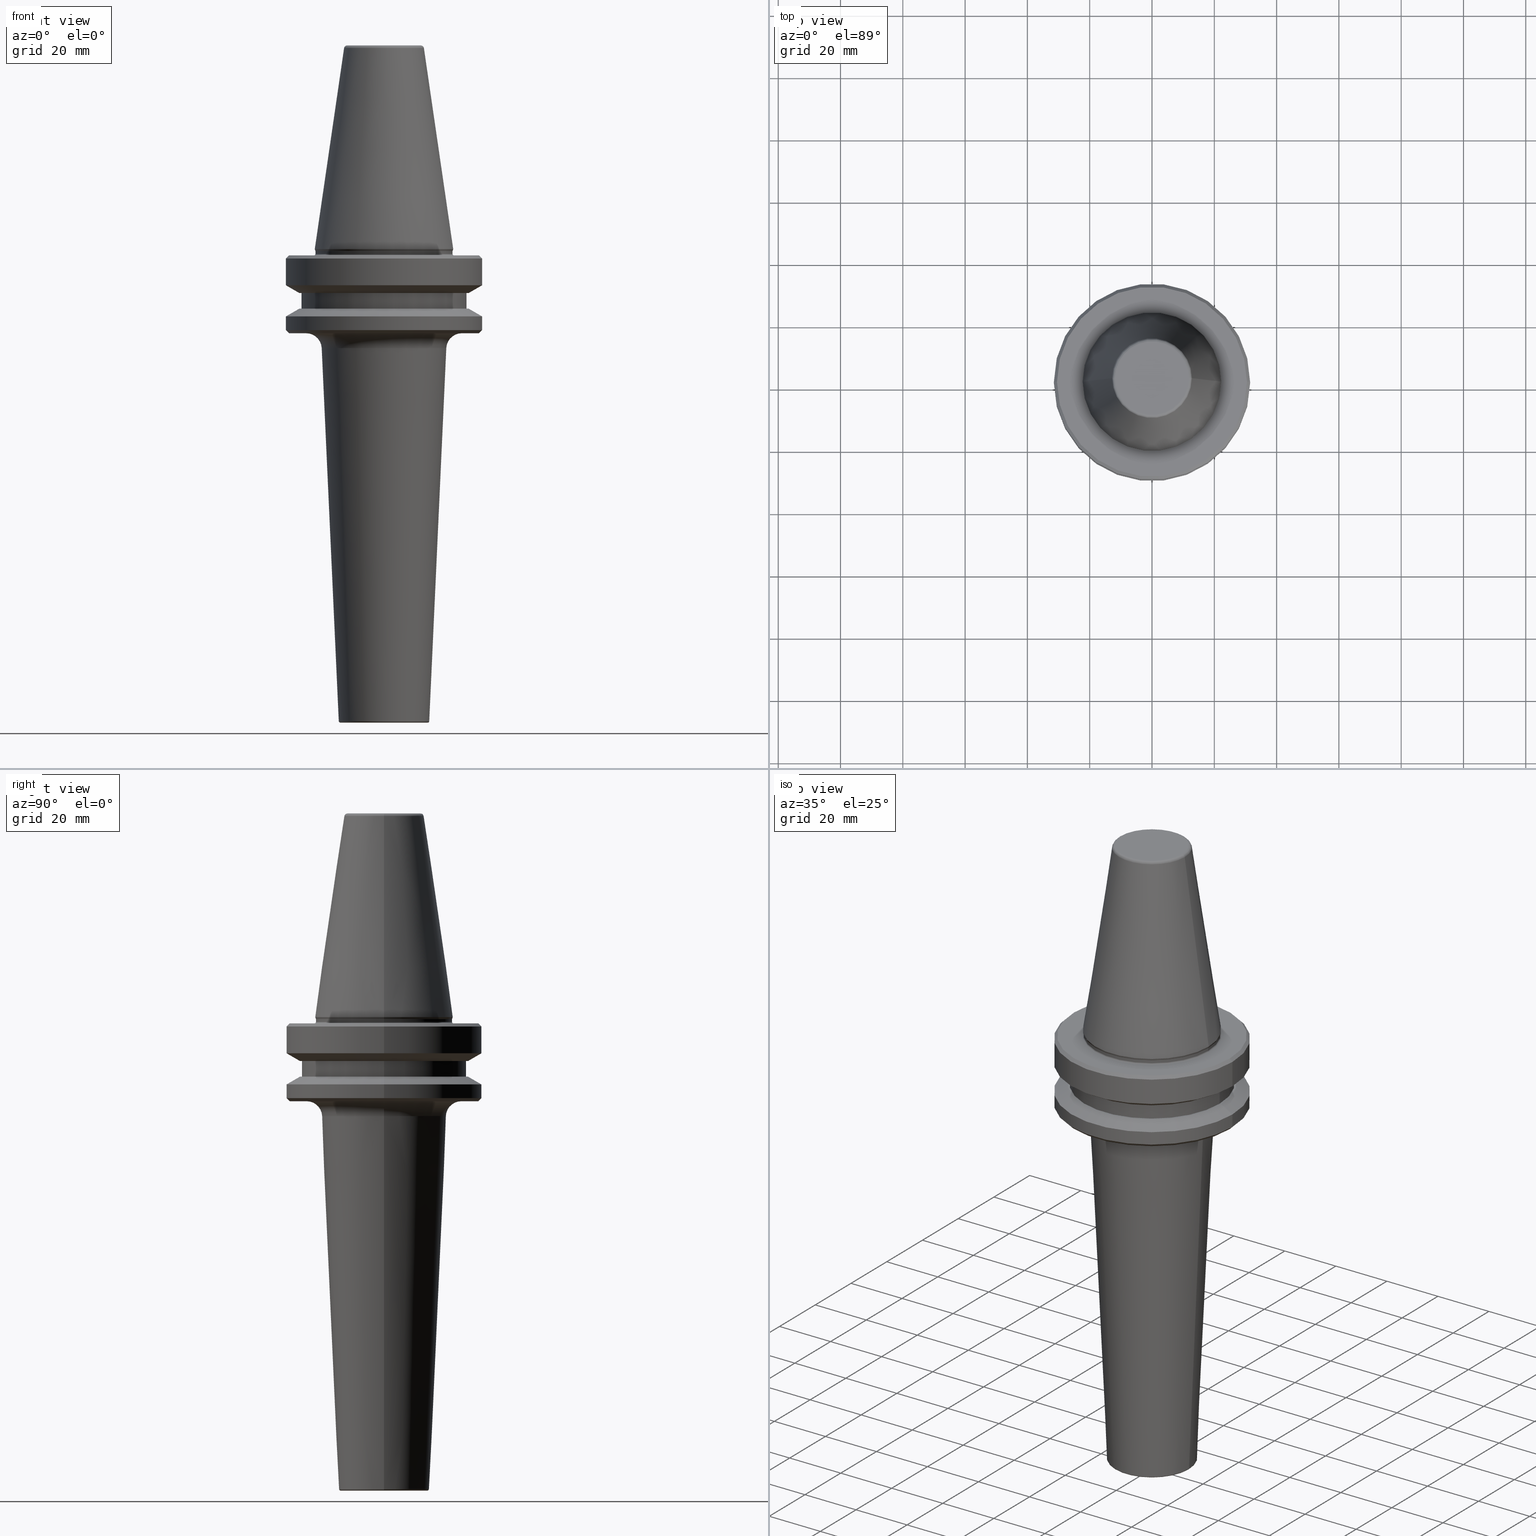
[diagram: canonical four-view strip — front | top / right | iso, engineering-drawing reading convention]
A machine part, canonical four-view strip (front | top / right | iso — engineering-drawing reading convention). The complete STEP part file that produces these views, byte-faithful:
ISO-10303-21;
HEADER;
FILE_DESCRIPTION (( 'STEP AP203' ),
    '1' );
FILE_NAME ('BT40 MCA16 125 AD+B-2.5G 25000 SL.STEP',
    '2019-05-24T10:31:08',
    ( '' ),
    ( '' ),
    'SwSTEP 2.0',
    'SolidWorks 2014',
    '' );
FILE_SCHEMA (( 'CONFIG_CONTROL_DESIGN' ));
ENDSEC;

DATA;
#1 = EDGE_CURVE ( 'NONE', #182, #379, #695, .T. ) ;
#2 = EDGE_LOOP ( 'NONE', ( #637, #651, #67, #163 ) ) ;
#3 = ORIENTED_EDGE ( 'NONE', *, *, #92, .T. ) ;
#4 = CIRCLE ( 'NONE', #200, 11.82266927716813000 ) ;
#5 = AXIS2_PLACEMENT_3D ( 'NONE', #912, #444, #359 ) ;
#6 = CONICAL_SURFACE ( 'NONE', #387, 20.00000000000000400, 0.04571435657293276100 ) ;
#7 = DIRECTION ( 'NONE',  ( -0.0000000000000000000, -0.0000000000000000000, 1.000000000000000000 ) ) ;
#8 = DIRECTION ( 'NONE',  ( 1.000000000000000000, 0.0000000000000000000, 0.0000000000000000000 ) ) ;
#9 = ORIENTED_EDGE ( 'NONE', *, *, #1007, .T. ) ;
#10 = CARTESIAN_POINT ( 'NONE',  ( 12.81220206925736900, 2.145409868259749100E-015, -0.8556918111122247000 ) ) ;
#11 = AXIS2_PLACEMENT_3D ( 'NONE', #25, #518, #603 ) ;
#12 = EDGE_CURVE ( 'NONE', #82, #119, #267, .T. ) ;
#13 = PLANE ( 'NONE',  #1008 ) ;
#14 = DIRECTION ( 'NONE',  ( 1.000000000000000000, 0.0000000000000000000, 0.0000000000000000000 ) ) ;
#15 = VECTOR ( 'NONE', #395, 1000.000000000000000 ) ;
#16 = CARTESIAN_POINT ( 'NONE',  ( 0.0000000000000000000, 0.0000000000000000000, -216.9228492179622700 ) ) ;
#17 = CARTESIAN_POINT ( 'NONE',  ( 30.49999999999997200, 3.735172737399423600E-015, -67.40000000000034700 ) ) ;
#18 = EDGE_LOOP ( 'NONE', ( #398, #620, #79, #153 ) ) ;
#19 = CC_DESIGN_PERSON_AND_ORGANIZATION_ASSIGNMENT ( #809, #791, ( #862 ) ) ;
#20 = VERTEX_POINT ( 'NONE', #642 ) ;
#21 = LINE ( 'NONE', #756, #758 ) ;
#22 = DIRECTION ( 'NONE',  ( 1.000000000000000000, 0.0000000000000000000, 0.0000000000000000000 ) ) ;
#23 = AXIS2_PLACEMENT_3D ( 'NONE', #575, #657, #161 ) ;
#24 = CARTESIAN_POINT ( 'NONE',  ( 0.0000000000000000000, 0.0000000000000000000, -91.40000000000037500 ) ) ;
#25 = CARTESIAN_POINT ( 'NONE',  ( 0.0000000000000000000, 0.0000000000000000000, 6.357346922996331500 ) ) ;
#26 = CARTESIAN_POINT ( 'NONE',  ( 0.0000000000000000000, 0.0000000000000000000, -0.8556918111122247000 ) ) ;
#27 = FACE_OUTER_BOUND ( 'NONE', #797, .T. ) ;
#28 = EDGE_CURVE ( 'NONE', #891, #82, #483, .T. ) ;
#29 = EDGE_CURVE ( 'NONE', #379, #769, #158, .T. ) ;
#30 = EDGE_LOOP ( 'NONE', ( #324, #408, #881, #262 ) ) ;
#31 = CONICAL_SURFACE ( 'NONE', #281, 12.81220206925736900, 0.1448138077623198300 ) ;
#32 = DIRECTION ( 'NONE',  ( 1.000000000000000000, 0.0000000000000000000, 0.0000000000000000000 ) ) ;
#33 = AXIS2_PLACEMENT_3D ( 'NONE', #909, #441, #985 ) ;
#34 = EDGE_LOOP ( 'NONE', ( #220, #611, #936, #789 ) ) ;
#35 = EDGE_CURVE ( 'NONE', #1011, #626, #574, .T. ) ;
#36 = UNCERTAINTY_MEASURE_WITH_UNIT (LENGTH_MEASURE( 1.000000000000000100E-005 ), #647, 'distance_accuracy_value', 'NONE');
#37 = VERTEX_POINT ( 'NONE', #658 ) ;
#38 = AXIS2_PLACEMENT_3D ( 'NONE', #303, #473, #1022 ) ;
#39 = PERSON_AND_ORGANIZATION_ROLE ( 'creator' ) ;
#40 = EDGE_LOOP ( 'NONE', ( #503, #761, #724, #55 ) ) ;
#41 = CIRCLE ( 'NONE', #565, 22.02412295168554100 ) ;
#42 = DIRECTION ( 'NONE',  ( -0.0000000000000000000, -0.0000000000000000000, 1.000000000000000000 ) ) ;
#43 = CARTESIAN_POINT ( 'NONE',  ( 0.0000000000000000000, 0.0000000000000000000, -65.95190515433003500 ) ) ;
#44 = CARTESIAN_POINT ( 'NONE',  ( 0.0000000000000000000, 0.0000000000000000000, 6.357346922996331500 ) ) ;
#45 = CARTESIAN_POINT ( 'NONE',  ( -22.02412295168553100, 2.697177167680943700E-015, -65.95190515433003500 ) ) ;
#46 = DIRECTION ( 'NONE',  ( 1.000000000000000000, 0.0000000000000000000, 0.0000000000000000000 ) ) ;
#47 = EDGE_CURVE ( 'NONE', #96, #626, #383, .T. ) ;
#48 = CARTESIAN_POINT ( 'NONE',  ( 0.0000000000000000000, 0.0000000000000000000, -66.08871321165987900 ) ) ;
#49 = CARTESIAN_POINT ( 'NONE',  ( 14.02235020802593700, 0.0000000000000000000, -216.9000000000083000 ) ) ;
#50 = DIRECTION ( 'NONE',  ( 1.000000000000000000, 0.0000000000000000000, 0.0000000000000000000 ) ) ;
#51 = DIRECTION ( 'NONE',  ( -0.0000000000000000000, -0.0000000000000000000, 1.000000000000000000 ) ) ;
#52 = FACE_OUTER_BOUND ( 'NONE', #951, .T. ) ;
#53 = EDGE_CURVE ( 'NONE', #212, #382, #362, .T. ) ;
#54 = ORIENTED_EDGE ( 'NONE', *, *, #110, .T. ) ;
#55 = ORIENTED_EDGE ( 'NONE', *, *, #133, .F. ) ;
#56 = FACE_OUTER_BOUND ( 'NONE', #189, .T. ) ;
#57 = CARTESIAN_POINT ( 'NONE',  ( 0.0000000000000000000, 0.0000000000000000000, 0.0000000000000000000 ) ) ;
#58 = AXIS2_PLACEMENT_3D ( 'NONE', #449, #996, #520 ) ;
#59 = EDGE_LOOP ( 'NONE', ( #815, #514 ) ) ;
#60 = APPLICATION_PROTOCOL_DEFINITION ( 'international standard', 'config_control_design', 1994, #563 ) ;
#61 = DIRECTION ( 'NONE',  ( 1.000000000000000000, 0.0000000000000000000, 0.0000000000000000000 ) ) ;
#62 = PRODUCT_DEFINITION_SHAPE ( 'NONE', 'NONE',  #601 ) ;
#63 = AXIS2_PLACEMENT_3D ( 'NONE', #839, #360, #913 ) ;
#64 = DIRECTION ( 'NONE',  ( 1.224646799147353200E-016, 1.000000000000000000, 0.0000000000000000000 ) ) ;
#65 = VECTOR ( 'NONE', #559, 1000.000000000000000 ) ;
#66 = ORIENTED_EDGE ( 'NONE', *, *, #110, .F. ) ;
#67 = ORIENTED_EDGE ( 'NONE', *, *, #167, .T. ) ;
#68 = LINE ( 'NONE', #947, #705 ) ;
#69 = ADVANCED_FACE ( 'NONE', ( #768 ), #739, .T. ) ;
#70 = SECURITY_CLASSIFICATION ( '', '', #304 ) ;
#71 = DIRECTION ( 'NONE',  ( 1.000000000000000000, 0.0000000000000000000, 0.0000000000000000000 ) ) ;
#72 = DIRECTION ( 'NONE',  ( 1.000000000000000000, 0.0000000000000000000, 0.0000000000000000000 ) ) ;
#73 = CIRCLE ( 'NONE', #757, 22.02412295168554100 ) ;
#74 = DIRECTION ( 'NONE',  ( 1.000000000000000000, 0.0000000000000000000, 0.0000000000000000000 ) ) ;
#75 = DIRECTION ( 'NONE',  ( 0.0000000000000000000, -1.000000000000000000, 0.0000000000000000000 ) ) ;
#76 = AXIS2_PLACEMENT_3D ( 'NONE', #579, #75, #665 ) ;
#77 = ORIENTED_EDGE ( 'NONE', *, *, #448, .T. ) ;
#78 = VERTEX_POINT ( 'NONE', #143 ) ;
#79 = ORIENTED_EDGE ( 'NONE', *, *, #197, .T. ) ;
#80 = DIRECTION ( 'NONE',  ( -0.0000000000000000000, -0.0000000000000000000, 1.000000000000000000 ) ) ;
#81 = CARTESIAN_POINT ( 'NONE',  ( 0.0000000000000000000, 0.0000000000000000000, -66.90000000000040400 ) ) ;
#82 = VERTEX_POINT ( 'NONE', #465 ) ;
#83 = ADVANCED_FACE ( 'NONE', ( #129 ), #307, .T. ) ;
#84 = VECTOR ( 'NONE', #225, 1000.000000000000000 ) ;
#85 = DIRECTION ( 'NONE',  ( -0.0000000000000000000, -0.0000000000000000000, 1.000000000000000000 ) ) ;
#86 = ORIENTED_EDGE ( 'NONE', *, *, #572, .F. ) ;
#87 = EDGE_CURVE ( 'NONE', #984, #1013, #521, .T. ) ;
#88 = ADVANCED_FACE ( 'NONE', ( #790 ), #998, .T. ) ;
#89 = EDGE_CURVE ( 'NONE', #78, #677, #73, .T. ) ;
#90 = DIRECTION ( 'NONE',  ( -0.0000000000000000000, -0.0000000000000000000, 1.000000000000000000 ) ) ;
#91 = CARTESIAN_POINT ( 'NONE',  ( 0.0000000000000000000, 0.0000000000000000000, -216.9000000000083000 ) ) ;
#92 = EDGE_CURVE ( 'NONE', #469, #769, #939, .T. ) ;
#93 = ORIENTED_EDGE ( 'NONE', *, *, #696, .F. ) ;
#94 = AXIS2_PLACEMENT_3D ( 'NONE', #48, #638, #139 ) ;
#95 = CIRCLE ( 'NONE', #155, 4.999999999999993800 ) ;
#96 = VERTEX_POINT ( 'NONE', #113 ) ;
#97 = DIRECTION ( 'NONE',  ( 1.000000000000000000, 0.0000000000000000000, 0.0000000000000000000 ) ) ;
#98 = EDGE_CURVE ( 'NONE', #1023, #500, #545, .T. ) ;
#99 = DIRECTION ( 'NONE',  ( 0.7071067811865487900, 0.0000000000000000000, 0.7071067811865463500 ) ) ;
#100 = ADVANCED_FACE ( 'NONE', ( #106 ), #971, .T. ) ;
#101 = LINE ( 'NONE', #363, #517 ) ;
#102 = DIRECTION ( 'NONE',  ( 1.000000000000000000, 0.0000000000000000000, 0.0000000000000000000 ) ) ;
#103 = VERTEX_POINT ( 'NONE', #995 ) ;
#104 = AXIS2_PLACEMENT_3D ( 'NONE', #396, #944, #476 ) ;
#105 = CARTESIAN_POINT ( 'NONE',  ( 31.50000000000008500, 0.0000000000000000000, -68.40000000000046000 ) ) ;
#106 = FACE_OUTER_BOUND ( 'NONE', #1043, .T. ) ;
#107 = ADVANCED_FACE ( 'NONE', ( #774 ), #552, .T. ) ;
#108 = VERTEX_POINT ( 'NONE', #686 ) ;
#109 = ORIENTED_EDGE ( 'NONE', *, *, #278, .T. ) ;
#110 = EDGE_CURVE ( 'NONE', #687, #577, #135, .T. ) ;
#111 = LINE ( 'NONE', #17, #527 ) ;
#112 = DIRECTION ( 'NONE',  ( 1.000000000000000000, 0.0000000000000000000, 0.0000000000000000000 ) ) ;
#113 = CARTESIAN_POINT ( 'NONE',  ( -22.00000000000002100, 2.724839128102860200E-015, -66.90000000000040400 ) ) ;
#114 = ORIENTED_EDGE ( 'NONE', *, *, #1003, .F. ) ;
#115 = FACE_OUTER_BOUND ( 'NONE', #18, .T. ) ;
#116 = EDGE_CURVE ( 'NONE', #672, #890, #368, .T. ) ;
#117 = DIRECTION ( 'NONE',  ( 1.000000000000000000, 0.0000000000000000000, 0.0000000000000000000 ) ) ;
#118 = ORIENTED_EDGE ( 'NONE', *, *, #1, .T. ) ;
#119 = VERTEX_POINT ( 'NONE', #105 ) ;
#120 = AXIS2_PLACEMENT_3D ( 'NONE', #301, #863, #384 ) ;
#121 = LINE ( 'NONE', #837, #377 ) ;
#122 = ORIENTED_EDGE ( 'NONE', *, *, #28, .T. ) ;
#123 = ORIENTED_EDGE ( 'NONE', *, *, #828, .T. ) ;
#124 = AXIS2_PLACEMENT_3D ( 'NONE', #302, #866, #386 ) ;
#125 = COORDINATED_UNIVERSAL_TIME_OFFSET ( 5, 30, .AHEAD. ) ;
#126 = CONICAL_SURFACE ( 'NONE', #5, 22.22499999999993700, 0.3490658503994643600 ) ;
#127 = DIRECTION ( 'NONE',  ( -0.0000000000000000000, -0.0000000000000000000, 1.000000000000000000 ) ) ;
#128 = CARTESIAN_POINT ( 'NONE',  ( 0.0000000000000000000, 0.0000000000000000000, -91.40000000000037500 ) ) ;
#129 = FACE_OUTER_BOUND ( 'NONE', #869, .T. ) ;
#130 = APPROVAL_STATUS ( 'not_yet_approved' ) ;
#131 = CC_DESIGN_PERSON_AND_ORGANIZATION_ASSIGNMENT ( #595, #868, ( #70 ) ) ;
#132 = DIRECTION ( 'NONE',  ( 1.000000000000000000, 0.0000000000000000000, 0.0000000000000000000 ) ) ;
#133 = EDGE_CURVE ( 'NONE', #924, #561, #578, .T. ) ;
#134 = ORIENTED_EDGE ( 'NONE', *, *, #159, .T. ) ;
#135 = CIRCLE ( 'NONE', #908, 27.16962701892256100 ) ;
#136 = DATE_AND_TIME ( #369, #580 ) ;
#137 = ORIENTED_EDGE ( 'NONE', *, *, #572, .T. ) ;
#138 = CARTESIAN_POINT ( 'NONE',  ( 0.0000000000000000000, 0.0000000000000000000, -76.99985799368391800 ) ) ;
#139 = DIRECTION ( 'NONE',  ( 1.000000000000000000, 0.0000000000000000000, 0.0000000000000000000 ) ) ;
#140 = AXIS2_PLACEMENT_3D ( 'NONE', #817, #1046, #71 ) ;
#141 = CONICAL_SURFACE ( 'NONE', #736, 30.49999999999997200, 0.7853981633974482800 ) ;
#142 = DIRECTION ( 'NONE',  ( 0.0000000000000000000, 0.0000000000000000000, -1.000000000000000000 ) ) ;
#143 = CARTESIAN_POINT ( 'NONE',  ( 22.02412295168553100, 0.0000000000000000000, -65.95190515433003500 ) ) ;
#144 = CARTESIAN_POINT ( 'NONE',  ( -31.50000000000008500, 3.857637417314172900E-015, 6.357346922996331500 ) ) ;
#145 = CARTESIAN_POINT ( 'NONE',  ( -26.50000000000019200, 3.245314017740509400E-015, -79.50000000000012800 ) ) ;
#146 = EDGE_CURVE ( 'NONE', #78, #382, #335, .T. ) ;
#147 =( NAMED_UNIT ( * ) PLANE_ANGLE_UNIT ( ) SI_UNIT ( $, .RADIAN. ) );
#148 = FACE_OUTER_BOUND ( 'NONE', #59, .T. ) ;
#149 = ORIENTED_EDGE ( 'NONE', *, *, #228, .F. ) ;
#150 = DIRECTION ( 'NONE',  ( -0.0000000000000000000, -0.0000000000000000000, 1.000000000000000000 ) ) ;
#151 = EDGE_LOOP ( 'NONE', ( #322, #54 ) ) ;
#152 = LOCAL_TIME ( 16, 1, 8.000000000000000000, #380 ) ;
#153 = ORIENTED_EDGE ( 'NONE', *, *, #807, .T. ) ;
#154 = DIRECTION ( 'NONE',  ( 0.0000000000000000000, 0.0000000000000000000, -1.000000000000000000 ) ) ;
#155 = AXIS2_PLACEMENT_3D ( 'NONE', #402, #950, #478 ) ;
#156 = ORIENTED_EDGE ( 'NONE', *, *, #89, .T. ) ;
#157 = CARTESIAN_POINT ( 'NONE',  ( -22.49999999999996400, 2.755455298081540400E-015, -67.40000000000034700 ) ) ;
#158 = LINE ( 'NONE', #557, #993 ) ;
#159 = EDGE_CURVE ( 'NONE', #716, #119, #111, .T. ) ;
#160 = AXIS2_PLACEMENT_3D ( 'NONE', #24, #612, #112 ) ;
#161 = DIRECTION ( 'NONE',  ( 1.000000000000000000, 0.0000000000000000000, 0.0000000000000000000 ) ) ;
#162 = DIRECTION ( 'NONE',  ( 1.224646799147353200E-016, 1.000000000000000000, 0.0000000000000000000 ) ) ;
#163 = ORIENTED_EDGE ( 'NONE', *, *, #742, .F. ) ;
#164 = CARTESIAN_POINT ( 'NONE',  ( -12.81220206925736900, 0.0000000000000000000, -0.8556918111122247000 ) ) ;
#165 = APPROVAL_DATE_TIME ( #392, #654 ) ;
#166 = EDGE_LOOP ( 'NONE', ( #286, #841 ) ) ;
#167 = EDGE_CURVE ( 'NONE', #769, #469, #745, .T. ) ;
#168 = EDGE_CURVE ( 'NONE', #973, #340, #313, .T. ) ;
#169 = ORIENTED_EDGE ( 'NONE', *, *, #770, .F. ) ;
#170 = EDGE_CURVE ( 'NONE', #687, #245, #795, .T. ) ;
#171 = DIRECTION ( 'NONE',  ( -0.0000000000000000000, -0.0000000000000000000, 1.000000000000000000 ) ) ;
#172 = CARTESIAN_POINT ( 'NONE',  ( 0.0000000000000000000, 0.0000000000000000000, -1.000000000000334000 ) ) ;
#173 = DIRECTION ( 'NONE',  ( 1.000000000000000000, 0.0000000000000000000, 0.0000000000000000000 ) ) ;
#174 = CARTESIAN_POINT ( 'NONE',  ( 0.0000000000000000000, 0.0000000000000000000, -66.90000000000040400 ) ) ;
#175 = CARTESIAN_POINT ( 'NONE',  ( -24.99477640379319300, 3.060977291830912200E-015, -92.40000000000802100 ) ) ;
#176 = AXIS2_PLACEMENT_3D ( 'NONE', #544, #42, #630 ) ;
#177 = ADVANCED_FACE ( 'NONE', ( #922 ), #244, .T. ) ;
#178 = LINE ( 'NONE', #240, #805 ) ;
#179 = CARTESIAN_POINT ( 'NONE',  ( 26.50000000000019200, 0.0000000000000000000, -84.50000000000068200 ) ) ;
#180 = ORIENTED_EDGE ( 'NONE', *, *, #779, .F. ) ;
#181 = APPROVAL_DATE_TIME ( #409, #914 ) ;
#182 = VERTEX_POINT ( 'NONE', #820 ) ;
#183 = DIRECTION ( 'NONE',  ( -0.0000000000000000000, -0.0000000000000000000, 1.000000000000000000 ) ) ;
#184 = AXIS2_PLACEMENT_3D ( 'NONE', #191, #1049, #576 ) ;
#185 = DIRECTION ( 'NONE',  ( -0.3420201433262311000, 4.188538737683878900E-017, 0.9396926207857037000 ) ) ;
#186 = ORIENTED_EDGE ( 'NONE', *, *, #558, .F. ) ;
#187 = DIRECTION ( 'NONE',  ( -0.0000000000000000000, -0.0000000000000000000, 1.000000000000000000 ) ) ;
#188 = CARTESIAN_POINT ( 'NONE',  ( -27.16962701892256100, 0.0000000000000000000, -84.50000000000068200 ) ) ;
#189 = EDGE_LOOP ( 'NONE', ( #415, #997, #529, #310 ) ) ;
#190 = FACE_OUTER_BOUND ( 'NONE', #1048, .T. ) ;
#191 = CARTESIAN_POINT ( 'NONE',  ( 0.0000000000000000000, 0.0000000000000000000, -84.50000000000068200 ) ) ;
#192 = ADVANCED_FACE ( 'NONE', ( #468 ), #655, .T. ) ;
#193 = CC_DESIGN_DATE_AND_TIME_ASSIGNMENT ( #786, #389, ( #70 ) ) ;
#194 = APPROVAL_PERSON_ORGANIZATION ( #421, #654, #543 ) ;
#195 = EDGE_LOOP ( 'NONE', ( #524, #945, #77, #965 ) ) ;
#196 = VERTEX_POINT ( 'NONE', #222 ) ;
#197 = EDGE_CURVE ( 'NONE', #37, #659, #861, .T. ) ;
#198 = CIRCLE ( 'NONE', #1041, 31.50000000000008500 ) ;
#199 = EDGE_LOOP ( 'NONE', ( #813, #378, #299, #701 ) ) ;
#200 = AXIS2_PLACEMENT_3D ( 'NONE', #320, #884, #406 ) ;
#201 = PLANE ( 'NONE',  #683 ) ;
#202 = DIRECTION ( 'NONE',  ( 1.000000000000000000, 0.0000000000000000000, 0.0000000000000000000 ) ) ;
#203 = CARTESIAN_POINT ( 'NONE',  ( 0.0000000000000000000, 0.0000000000000000000, -87.00014200631733300 ) ) ;
#204 = ADVANCED_FACE ( 'NONE', ( #888 ), #418, .T. ) ;
#205 = DIRECTION ( 'NONE',  ( -0.0000000000000000000, -0.0000000000000000000, 1.000000000000000000 ) ) ;
#206 = ORIENTED_EDGE ( 'NONE', *, *, #1033, .T. ) ;
#207 = ORIENTED_EDGE ( 'NONE', *, *, #35, .T. ) ;
#208 = FACE_OUTER_BOUND ( 'NONE', #293, .T. ) ;
#209 = EDGE_CURVE ( 'NONE', #1023, #82, #842, .T. ) ;
#210 = TOROIDAL_SURFACE ( 'NONE', #710, 22.40000000000019800, 0.4000000000001546800 ) ;
#211 = CARTESIAN_POINT ( 'NONE',  ( -22.49999999999996400, 2.755455298081540400E-015, -66.90000000000040400 ) ) ;
#212 = VERTEX_POINT ( 'NONE', #10 ) ;
#213 = AXIS2_PLACEMENT_3D ( 'NONE', #403, #954, #480 ) ;
#214 = EDGE_CURVE ( 'NONE', #37, #212, #684, .T. ) ;
#215 = ORIENTED_EDGE ( 'NONE', *, *, #1, .F. ) ;
#216 = CIRCLE ( 'NONE', #467, 22.49999999999996400 ) ;
#217 = AXIS2_PLACEMENT_3D ( 'NONE', #692, #205, #781 ) ;
#218 = DIRECTION ( 'NONE',  ( 1.000000000000000000, 0.0000000000000000000, 0.0000000000000000000 ) ) ;
#219 = PERSON_AND_ORGANIZATION_ROLE ( 'creator' ) ;
#220 = ORIENTED_EDGE ( 'NONE', *, *, #288, .T. ) ;
#221 = CARTESIAN_POINT ( 'NONE',  ( 0.0000000000000000000, 0.0000000000000000000, -65.40000000000057400 ) ) ;
#222 = CARTESIAN_POINT ( 'NONE',  ( -30.49999999999997200, 0.0000000000000000000, -67.40000000000034700 ) ) ;
#223 = EDGE_LOOP ( 'NONE', ( #1047, #731, #783, #583 ) ) ;
#224 = CONICAL_SURFACE ( 'NONE', #784, 31.50000000000008500, 1.047197551196597400 ) ;
#225 = DIRECTION ( 'NONE',  ( -0.0000000000000000000, -0.0000000000000000000, 1.000000000000000000 ) ) ;
#226 = DIRECTION ( 'NONE',  ( -0.0000000000000000000, -0.0000000000000000000, 1.000000000000000000 ) ) ;
#227 = EDGE_CURVE ( 'NONE', #626, #1011, #216, .T. ) ;
#228 = EDGE_CURVE ( 'NONE', #716, #196, #628, .T. ) ;
#229 = CARTESIAN_POINT ( 'NONE',  ( 22.49999999999996400, 0.0000000000000000000, -67.40000000000034700 ) ) ;
#230 = DIRECTION ( 'NONE',  ( -0.0000000000000000000, -0.0000000000000000000, 1.000000000000000000 ) ) ;
#231 = DIRECTION ( 'NONE',  ( -0.0000000000000000000, -0.0000000000000000000, 1.000000000000000000 ) ) ;
#232 = ORIENTED_EDGE ( 'NONE', *, *, #807, .F. ) ;
#233 = EDGE_LOOP ( 'NONE', ( #114, #920, #953, #693 ) ) ;
#234 = ADVANCED_BREP_SHAPE_REPRESENTATION ( 'BT40 MCA16 125 AD+B-2.5G 25000 SL', ( #699, #489 ), #271 ) ;
#235 = FACE_BOUND ( 'NONE', #845, .T. ) ;
#236 = EDGE_CURVE ( 'NONE', #672, #561, #447, .T. ) ;
#237 = AXIS2_PLACEMENT_3D ( 'NONE', #221, #792, #306 ) ;
#238 = TOROIDAL_SURFACE ( 'NONE', #547, 22.49999999999996400, 0.4999999999999449300 ) ;
#239 = ORIENTED_EDGE ( 'NONE', *, *, #933, .F. ) ;
#240 = CARTESIAN_POINT ( 'NONE',  ( -31.50000000000008500, 3.857637417314172900E-015, -91.40000000000037500 ) ) ;
#241 = AXIS2_PLACEMENT_3D ( 'NONE', #128, #661, #72 ) ;
#242 = DIRECTION ( 'NONE',  ( -0.0000000000000000000, -0.0000000000000000000, 1.000000000000000000 ) ) ;
#243 = ADVANCED_FACE ( 'NONE', ( #190 ), #201, .F. ) ;
#244 = CONICAL_SURFACE ( 'NONE', #241, 31.50000000000008500, 0.7853981633974500600 ) ;
#245 = VERTEX_POINT ( 'NONE', #443 ) ;
#246 = EDGE_CURVE ( 'NONE', #212, #37, #604, .T. ) ;
#247 = ADVANCED_FACE ( 'NONE', ( #1019 ), #141, .T. ) ;
#248 = APPROVAL ( #941, 'UNSPECIFIED' ) ;
#249 = ORIENTED_EDGE ( 'NONE', *, *, #723, .F. ) ;
#250 = CIRCLE ( 'NONE', #886, 31.50000000000008500 ) ;
#251 = CARTESIAN_POINT ( 'NONE',  ( 0.0000000000000000000, 0.0000000000000000000, -65.40000000000057400 ) ) ;
#252 = CARTESIAN_POINT ( 'NONE',  ( 0.0000000000000000000, 0.0000000000000000000, -91.40000000000037500 ) ) ;
#253 = DIRECTION ( 'NONE',  ( 1.000000000000000000, 0.0000000000000000000, 0.0000000000000000000 ) ) ;
#254 = AXIS2_PLACEMENT_3D ( 'NONE', #969, #332, #1052 ) ;
#255 = ADVANCED_FACE ( 'NONE', ( #329 ), #556, .T. ) ;
#256 = DIRECTION ( 'NONE',  ( -0.0000000000000000000, -0.0000000000000000000, 1.000000000000000000 ) ) ;
#257 = CIRCLE ( 'NONE', #974, 22.00000000000002100 ) ;
#258 = DIRECTION ( 'NONE',  ( 1.000000000000000000, 0.0000000000000000000, 0.0000000000000000000 ) ) ;
#259 = ADVANCED_FACE ( 'NONE', ( #371 ), #975, .F. ) ;
#260 = CARTESIAN_POINT ( 'NONE',  ( -11.82266927716813000, 1.447859408766170200E-015, -1.000000000000334000 ) ) ;
#261 = CARTESIAN_POINT ( 'NONE',  ( -14.52182784840496200, 1.778410999231803200E-015, -216.9228492179622700 ) ) ;
#262 = ORIENTED_EDGE ( 'NONE', *, *, #337, .T. ) ;
#263 = ADVANCED_FACE ( 'NONE', ( #905 ), #800, .F. ) ;
#264 = DIRECTION ( 'NONE',  ( 1.000000000000000000, 0.0000000000000000000, 0.0000000000000000000 ) ) ;
#265 = CIRCLE ( 'NONE', #217, 31.50000000000008500 ) ;
#266 = EDGE_CURVE ( 'NONE', #560, #96, #582, .T. ) ;
#267 = LINE ( 'NONE', #719, #1028 ) ;
#268 = EDGE_CURVE ( 'NONE', #849, #182, #778, .T. ) ;
#269 = DIRECTION ( 'NONE',  ( -1.000000000000000000, 0.0000000000000000000, -0.0000000000000000000 ) ) ;
#270 = CARTESIAN_POINT ( 'NONE',  ( 0.0000000000000000000, 0.0000000000000000000, -0.8556918111122247000 ) ) ;
#271 =( GEOMETRIC_REPRESENTATION_CONTEXT ( 3 ) GLOBAL_UNCERTAINTY_ASSIGNED_CONTEXT ( ( #36 ) ) GLOBAL_UNIT_ASSIGNED_CONTEXT ( ( #647, #147, #727 ) ) REPRESENTATION_CONTEXT ( 'NONE', 'WORKASPACE' ) );
#272 = CARTESIAN_POINT ( 'NONE',  ( 22.00000000000002100, 0.0000000000000000000, -66.90000000000040400 ) ) ;
#273 = VECTOR ( 'NONE', #562, 1000.000000000000000 ) ;
#274 = ORIENTED_EDGE ( 'NONE', *, *, #283, .T. ) ;
#275 = ORIENTED_EDGE ( 'NONE', *, *, #170, .T. ) ;
#276 = EDGE_CURVE ( 'NONE', #379, #844, #339, .T. ) ;
#277 = ADVANCED_FACE ( 'NONE', ( #952 ), #725, .T. ) ;
#278 = EDGE_CURVE ( 'NONE', #973, #1030, #748, .T. ) ;
#279 = EDGE_LOOP ( 'NONE', ( #137, #600, #808, #766 ) ) ;
#280 = FACE_OUTER_BOUND ( 'NONE', #233, .T. ) ;
#281 = AXIS2_PLACEMENT_3D ( 'NONE', #777, #851, #923 ) ;
#282 = DIRECTION ( 'NONE',  ( -0.0000000000000000000, -0.0000000000000000000, 1.000000000000000000 ) ) ;
#283 = EDGE_CURVE ( 'NONE', #1030, #1034, #530, .T. ) ;
#284 = DIRECTION ( 'NONE',  ( 0.0000000000000000000, 0.0000000000000000000, -1.000000000000000000 ) ) ;
#285 = CIRCLE ( 'NONE', #772, 11.82266927716813000 ) ;
#286 = ORIENTED_EDGE ( 'NONE', *, *, #35, .F. ) ;
#287 = CARTESIAN_POINT ( 'NONE',  ( 0.0000000000000000000, 0.0000000000000000000, -65.95190515433003500 ) ) ;
#288 = EDGE_CURVE ( 'NONE', #561, #924, #925, .T. ) ;
#289 = DIRECTION ( 'NONE',  ( 0.0000000000000000000, 0.0000000000000000000, -1.000000000000000000 ) ) ;
#290 = CARTESIAN_POINT ( 'NONE',  ( 0.0000000000000000000, 0.0000000000000000000, -216.9000000000083000 ) ) ;
#291 = ORIENTED_EDGE ( 'NONE', *, *, #623, .T. ) ;
#292 = FACE_OUTER_BOUND ( 'NONE', #34, .T. ) ;
#293 = EDGE_LOOP ( 'NONE', ( #206, #956 ) ) ;
#294 = AXIS2_PLACEMENT_3D ( 'NONE', #942, #475, #1024 ) ;
#295 = AXIS2_PLACEMENT_3D ( 'NONE', #251, #893, #741 ) ;
#296 = ORIENTED_EDGE ( 'NONE', *, *, #982, .T. ) ;
#297 = CIRCLE ( 'NONE', #213, 30.49999999999997200 ) ;
#298 = ORIENTED_EDGE ( 'NONE', *, *, #742, .T. ) ;
#299 = ORIENTED_EDGE ( 'NONE', *, *, #227, .T. ) ;
#300 = CIRCLE ( 'NONE', #464, 27.16962701892256100 ) ;
#301 = CARTESIAN_POINT ( 'NONE',  ( 0.0000000000000000000, 0.0000000000000000000, -79.50000000000012800 ) ) ;
#302 = CARTESIAN_POINT ( 'NONE',  ( 0.0000000000000000000, 0.0000000000000000000, -97.17150782046840600 ) ) ;
#303 = CARTESIAN_POINT ( 'NONE',  ( 0.0000000000000000000, 0.0000000000000000000, -87.00014200631733300 ) ) ;
#304 = SECURITY_CLASSIFICATION_LEVEL ( 'unclassified' ) ;
#305 = CC_DESIGN_APPROVAL ( #248, ( #70 ) ) ;
#306 = DIRECTION ( 'NONE',  ( 1.000000000000000000, 0.0000000000000000000, 0.0000000000000000000 ) ) ;
#307 = CONICAL_SURFACE ( 'NONE', #590, 30.49999999999997200, 0.7853981633974482800 ) ;
#308 = DIRECTION ( 'NONE',  ( 0.0000000000000000000, -1.000000000000000000, 0.0000000000000000000 ) ) ;
#309 = DIRECTION ( 'NONE',  ( 0.0000000000000000000, -1.000000000000000000, 0.0000000000000000000 ) ) ;
#310 = ORIENTED_EDGE ( 'NONE', *, *, #278, .F. ) ;
#311 = ORIENTED_EDGE ( 'NONE', *, *, #613, .F. ) ;
#312 = ORIENTED_EDGE ( 'NONE', *, *, #337, .F. ) ;
#313 = CIRCLE ( 'NONE', #184, 26.50000000000019200 ) ;
#314 = AXIS2_PLACEMENT_3D ( 'NONE', #958, #804, #486 ) ;
#315 = CARTESIAN_POINT ( 'NONE',  ( -31.50000000000008500, 3.857637417314172900E-015, -68.40000000000046000 ) ) ;
#316 = ORIENTED_EDGE ( 'NONE', *, *, #12, .F. ) ;
#317 = FACE_OUTER_BOUND ( 'NONE', #1000, .T. ) ;
#318 = EDGE_LOOP ( 'NONE', ( #714, #596, #9, #1016 ) ) ;
#319 = AXIS2_PLACEMENT_3D ( 'NONE', #419, #162, #740 ) ;
#320 = CARTESIAN_POINT ( 'NONE',  ( 0.0000000000000000000, 0.0000000000000000000, -4.440892098500626200E-013 ) ) ;
#321 = DIRECTION ( 'NONE',  ( 1.000000000000000000, 0.0000000000000000000, 0.0000000000000000000 ) ) ;
#322 = ORIENTED_EDGE ( 'NONE', *, *, #721, .T. ) ;
#323 = ADVANCED_FACE ( 'NONE', ( #504 ), #904, .T. ) ;
#324 = ORIENTED_EDGE ( 'NONE', *, *, #170, .F. ) ;
#325 = APPROVAL_DATE_TIME ( #539, #248 ) ;
#326 = ADVANCED_FACE ( 'NONE', ( #115 ), #31, .T. ) ;
#327 = CIRCLE ( 'NONE', #294, 24.99477640379319300 ) ;
#328 = EDGE_LOOP ( 'NONE', ( #450, #542, #249, #824 ) ) ;
#329 = FACE_OUTER_BOUND ( 'NONE', #30, .T. ) ;
#330 = AXIS2_PLACEMENT_3D ( 'NONE', #44, #689, #202 ) ;
#331 = PRODUCT ( 'BT40 MCA16 125 AD+B-2.5G 25000 SL', 'BT40 MCA16 125 AD+B-2.5G 25000 SL', '', ( #485 ) ) ;
#332 = DIRECTION ( 'NONE',  ( -0.0000000000000000000, -0.0000000000000000000, 1.000000000000000000 ) ) ;
#333 = DIRECTION ( 'NONE',  ( -0.0000000000000000000, -0.0000000000000000000, 1.000000000000000000 ) ) ;
#334 = EDGE_LOOP ( 'NONE', ( #1015, #685, #296, #453 ) ) ;
#335 = LINE ( 'NONE', #765, #948 ) ;
#336 = CARTESIAN_POINT ( 'NONE',  ( 0.0000000000000000000, 0.0000000000000000000, -79.50000000000012800 ) ) ;
#337 = EDGE_CURVE ( 'NONE', #108, #245, #265, .T. ) ;
#338 = DIRECTION ( 'NONE',  ( 1.000000000000000000, 0.0000000000000000000, 0.0000000000000000000 ) ) ;
#339 = CIRCLE ( 'NONE', #1044, 14.52182784840495500 ) ;
#340 = VERTEX_POINT ( 'NONE', #615 ) ;
#341 = CARTESIAN_POINT ( 'NONE',  ( 0.0000000000000000000, 0.0000000000000000000, -97.17150782046840600 ) ) ;
#342 = DIRECTION ( 'NONE',  ( 0.0000000000000000000, -0.0000000000000000000, 1.000000000000000000 ) ) ;
#343 = DIRECTION ( 'NONE',  ( -1.000000000000000000, 1.224646799147353000E-016, 0.0000000000000000000 ) ) ;
#344 = CARTESIAN_POINT ( 'NONE',  ( 22.22499999999993700, 0.0000000000000000000, -65.40000000000057400 ) ) ;
#345 = EDGE_LOOP ( 'NONE', ( #632, #118, #86, #93 ) ) ;
#346 = DIRECTION ( 'NONE',  ( 1.000000000000000000, 0.0000000000000000000, 0.0000000000000000000 ) ) ;
#347 = ADVANCED_FACE ( 'NONE', ( #317 ), #482, .T. ) ;
#348 = CARTESIAN_POINT ( 'NONE',  ( 11.82266927716813000, 0.0000000000000000000, -1.000000000000334000 ) ) ;
#349 = AXIS2_PLACEMENT_3D ( 'NONE', #798, #309, #875 ) ;
#350 = FACE_OUTER_BOUND ( 'NONE', #151, .T. ) ;
#351 = ORIENTED_EDGE ( 'NONE', *, *, #1003, .T. ) ;
#352 = DIRECTION ( 'NONE',  ( -0.8660254037844383700, 1.060575238724906500E-016, 0.5000000000000003300 ) ) ;
#353 = EDGE_LOOP ( 'NONE', ( #366, #180 ) ) ;
#354 = ADVANCED_FACE ( 'NONE', ( #694 ), #6, .T. ) ;
#355 = DIRECTION ( 'NONE',  ( 1.000000000000000000, 0.0000000000000000000, 0.0000000000000000000 ) ) ;
#356 = APPROVAL_PERSON_ORGANIZATION ( #569, #248, #474 ) ;
#357 = AXIS2_PLACEMENT_3D ( 'NONE', #943, #872, #709 ) ;
#358 = CIRCLE ( 'NONE', #58, 30.49999999999241900 ) ;
#359 = DIRECTION ( 'NONE',  ( 1.000000000000000000, 0.0000000000000000000, 0.0000000000000000000 ) ) ;
#360 = DIRECTION ( 'NONE',  ( -0.0000000000000000000, -0.0000000000000000000, 1.000000000000000000 ) ) ;
#361 = ADVANCED_FACE ( 'NONE', ( #292 ), #882, .T. ) ;
#362 = LINE ( 'NONE', #698, #967 ) ;
#363 = CARTESIAN_POINT ( 'NONE',  ( -22.00000000000002100, 2.694222958124179600E-015, 6.357346922996331500 ) ) ;
#364 = CC_DESIGN_SECURITY_CLASSIFICATION ( #70, ( #862 ) ) ;
#365 = ADVANCED_FACE ( 'NONE', ( #56 ), #648, .T. ) ;
#366 = ORIENTED_EDGE ( 'NONE', *, *, #98, .F. ) ;
#367 = DIRECTION ( 'NONE',  ( -0.0000000000000000000, -0.0000000000000000000, 1.000000000000000000 ) ) ;
#368 = CIRCLE ( 'NONE', #960, 30.49999999999241900 ) ;
#369 = CALENDAR_DATE ( 2019, 24, 5 ) ;
#370 = EDGE_LOOP ( 'NONE', ( #156, #980, #860, #531 ) ) ;
#371 = FACE_OUTER_BOUND ( 'NONE', #195, .T. ) ;
#372 = AXIS2_PLACEMENT_3D ( 'NONE', #568, #64, #652 ) ;
#373 = DIRECTION ( 'NONE',  ( -1.000000000000000000, 0.0000000000000000000, 0.0000000000000000000 ) ) ;
#374 = ADVANCED_FACE ( 'NONE', ( #463 ), #238, .F. ) ;
#375 = DIRECTION ( 'NONE',  ( 1.000000000000000000, 0.0000000000000000000, 0.0000000000000000000 ) ) ;
#376 = AXIS2_PLACEMENT_3D ( 'NONE', #720, #231, #802 ) ;
#377 = VECTOR ( 'NONE', #185, 1000.000000000000000 ) ;
#378 = ORIENTED_EDGE ( 'NONE', *, *, #47, .T. ) ;
#379 = VERTEX_POINT ( 'NONE', #261 ) ;
#380 = COORDINATED_UNIVERSAL_TIME_OFFSET ( 5, 30, .AHEAD. ) ;
#381 = ORIENTED_EDGE ( 'NONE', *, *, #830, .F. ) ;
#382 = VERTEX_POINT ( 'NONE', #344 ) ;
#383 = CIRCLE ( 'NONE', #484, 0.4999999999999449300 ) ;
#384 = DIRECTION ( 'NONE',  ( 1.000000000000000000, 0.0000000000000000000, 0.0000000000000000000 ) ) ;
#385 = DIRECTION ( 'NONE',  ( -0.0000000000000000000, -0.0000000000000000000, 1.000000000000000000 ) ) ;
#386 = DIRECTION ( 'NONE',  ( 1.000000000000000000, 0.0000000000000000000, 0.0000000000000000000 ) ) ;
#387 = AXIS2_PLACEMENT_3D ( 'NONE', #341, #458, #666 ) ;
#388 = DIRECTION ( 'NONE',  ( -0.0000000000000000000, -0.0000000000000000000, 1.000000000000000000 ) ) ;
#389 = DATE_TIME_ROLE ( 'classification_date' ) ;
#390 = ADVANCED_FACE ( 'NONE', ( #438 ), #210, .F. ) ;
#391 = CARTESIAN_POINT ( 'NONE',  ( 30.49999999999241900, 0.0000000000000000000, -92.40000000000803500 ) ) ;
#392 = DATE_AND_TIME ( #606, #818 ) ;
#393 = ORIENTED_EDGE ( 'NONE', *, *, #159, .F. ) ;
#394 = DIRECTION ( 'NONE',  ( -0.0000000000000000000, -0.0000000000000000000, 1.000000000000000000 ) ) ;
#395 = DIRECTION ( 'NONE',  ( -0.1443081888881795900, 0.0000000000000000000, -0.9895327920891826600 ) ) ;
#396 = CARTESIAN_POINT ( 'NONE',  ( 0.0000000000000000000, 0.0000000000000000000, -79.50000000000012800 ) ) ;
#397 = DIRECTION ( 'NONE',  ( 0.04569843590791970700, 0.0000000000000000000, 0.9989552807586381500 ) ) ;
#398 = ORIENTED_EDGE ( 'NONE', *, *, #53, .F. ) ;
#399 = DIRECTION ( 'NONE',  ( -1.000000000000000000, 1.224646799147354400E-016, 0.0000000000000000000 ) ) ;
#400 = ORIENTED_EDGE ( 'NONE', *, *, #669, .T. ) ;
#401 = EDGE_CURVE ( 'NONE', #340, #973, #858, .T. ) ;
#402 = CARTESIAN_POINT ( 'NONE',  ( -24.99477640379319300, 3.060977291830912600E-015, -97.40000000000800600 ) ) ;
#403 = CARTESIAN_POINT ( 'NONE',  ( 0.0000000000000000000, 0.0000000000000000000, -67.40000000000034700 ) ) ;
#404 = FACE_OUTER_BOUND ( 'NONE', #988, .T. ) ;
#405 = DIRECTION ( 'NONE',  ( 0.0000000000000000000, 0.0000000000000000000, 1.000000000000000000 ) ) ;
#406 = DIRECTION ( 'NONE',  ( 1.000000000000000000, 0.0000000000000000000, 0.0000000000000000000 ) ) ;
#407 = AXIS2_PLACEMENT_3D ( 'NONE', #49, #639, #142 ) ;
#408 = ORIENTED_EDGE ( 'NONE', *, *, #721, .F. ) ;
#409 = DATE_AND_TIME ( #621, #833 ) ;
#410 = ORIENTED_EDGE ( 'NONE', *, *, #133, .T. ) ;
#411 = AXIS2_PLACEMENT_3D ( 'NONE', #270, #838, #355 ) ;
#412 = DIRECTION ( 'NONE',  ( -0.7071067811865487900, 8.659560562354948900E-017, 0.7071067811865463500 ) ) ;
#413 = ADVANCED_FACE ( 'NONE', ( #676 ), #715, .T. ) ;
#414 = ADVANCED_FACE ( 'NONE', ( #1039, #497 ), #668, .F. ) ;
#415 = ORIENTED_EDGE ( 'NONE', *, *, #168, .T. ) ;
#416 = EDGE_CURVE ( 'NONE', #20, #726, #285, .T. ) ;
#417 = DIRECTION ( 'NONE',  ( -0.0000000000000000000, -0.0000000000000000000, 1.000000000000000000 ) ) ;
#418 = CONICAL_SURFACE ( 'NONE', #357, 12.81220206925736900, 0.1448138077623198300 ) ;
#419 = CARTESIAN_POINT ( 'NONE',  ( -14.02235020802593700, 1.717242629878218800E-015, -216.9000000000083000 ) ) ;
#420 = ADVANCED_FACE ( 'NONE', ( #622 ), #897, .T. ) ;
#421 = PERSON_AND_ORGANIZATION ( #663, #843 ) ;
#422 = ORIENTED_EDGE ( 'NONE', *, *, #416, .F. ) ;
#423 = ORIENTED_EDGE ( 'NONE', *, *, #617, .T. ) ;
#424 = PRODUCT_RELATED_PRODUCT_CATEGORY ( 'detail', '', ( #331 ) ) ;
#425 = VECTOR ( 'NONE', #432, 1000.000000000000000 ) ;
#426 = ORIENTED_EDGE ( 'NONE', *, *, #268, .F. ) ;
#427 = DIRECTION ( 'NONE',  ( 1.000000000000000000, 0.0000000000000000000, 0.0000000000000000000 ) ) ;
#428 = CARTESIAN_POINT ( 'NONE',  ( -31.50000000000008500, 3.857637417314172900E-015, 6.357346922996331500 ) ) ;
#429 = DIRECTION ( 'NONE',  ( -0.0000000000000000000, -0.0000000000000000000, 1.000000000000000000 ) ) ;
#430 = AXIS2_PLACEMENT_3D ( 'NONE', #728, #150, #321 ) ;
#431 = DIRECTION ( 'NONE',  ( -0.0000000000000000000, -0.0000000000000000000, 1.000000000000000000 ) ) ;
#432 = DIRECTION ( 'NONE',  ( -0.8660254037844332700, 0.0000000000000000000, -0.5000000000000093300 ) ) ;
#433 = ORIENTED_EDGE ( 'NONE', *, *, #401, .T. ) ;
#434 = ORIENTED_EDGE ( 'NONE', *, *, #146, .T. ) ;
#435 = FACE_BOUND ( 'NONE', #166, .T. ) ;
#436 = AXIS2_PLACEMENT_3D ( 'NONE', #1010, #534, #32 ) ;
#437 = DIRECTION ( 'NONE',  ( 0.0000000000000000000, 0.0000000000000000000, -1.000000000000000000 ) ) ;
#438 = FACE_OUTER_BOUND ( 'NONE', #334, .T. ) ;
#439 = ORIENTED_EDGE ( 'NONE', *, *, #456, .T. ) ;
#440 = ADVANCED_FACE ( 'NONE', ( #479 ), #690, .T. ) ;
#441 = DIRECTION ( 'NONE',  ( -0.0000000000000000000, -0.0000000000000000000, 1.000000000000000000 ) ) ;
#442 = DIRECTION ( 'NONE',  ( 1.000000000000000000, 0.0000000000000000000, 0.0000000000000000000 ) ) ;
#443 = CARTESIAN_POINT ( 'NONE',  ( 31.50000000000008500, 0.0000000000000000000, -87.00014200631733300 ) ) ;
#444 = DIRECTION ( 'NONE',  ( -0.0000000000000000000, -0.0000000000000000000, 1.000000000000000000 ) ) ;
#445 = ADVANCED_FACE ( 'NONE', ( #877 ), #461, .T. ) ;
#446 = DIRECTION ( 'NONE',  ( 0.7071067811865474600, 8.659560562354931600E-017, -0.7071067811865475700 ) ) ;
#447 = LINE ( 'NONE', #598, #816 ) ;
#448 = EDGE_CURVE ( 'NONE', #78, #103, #673, .T. ) ;
#449 = CARTESIAN_POINT ( 'NONE',  ( 0.0000000000000000000, 0.0000000000000000000, -92.40000000000803500 ) ) ;
#450 = ORIENTED_EDGE ( 'NONE', *, *, #266, .T. ) ;
#451 = AXIS2_PLACEMENT_3D ( 'NONE', #290, #1006, #346 ) ;
#452 = ADVANCED_FACE ( 'NONE', ( #52 ), #857, .T. ) ;
#453 = ORIENTED_EDGE ( 'NONE', *, *, #448, .F. ) ;
#454 = CIRCLE ( 'NONE', #928, 0.9999999999999696900 ) ;
#455 = CARTESIAN_POINT ( 'NONE',  ( 0.0000000000000000000, 0.0000000000000000000, 6.357346922996331500 ) ) ;
#456 = EDGE_CURVE ( 'NONE', #726, #20, #4, .T. ) ;
#457 = EDGE_CURVE ( 'NONE', #96, #560, #257, .T. ) ;
#458 = DIRECTION ( 'NONE',  ( -0.0000000000000000000, -0.0000000000000000000, 1.000000000000000000 ) ) ;
#459 = EDGE_LOOP ( 'NONE', ( #466, #823, #991, #704 ) ) ;
#460 = ORIENTED_EDGE ( 'NONE', *, *, #266, .F. ) ;
#461 = CYLINDRICAL_SURFACE ( 'NONE', #140, 22.00000000000002100 ) ;
#462 = ADVANCED_FACE ( 'NONE', ( #27 ), #616, .T. ) ;
#463 = FACE_OUTER_BOUND ( 'NONE', #738, .T. ) ;
#464 = AXIS2_PLACEMENT_3D ( 'NONE', #625, #127, #703 ) ;
#465 = CARTESIAN_POINT ( 'NONE',  ( 31.50000000000008500, 0.0000000000000000000, -76.99985799368391800 ) ) ;
#466 = ORIENTED_EDGE ( 'NONE', *, *, #29, .F. ) ;
#467 = AXIS2_PLACEMENT_3D ( 'NONE', #990, #512, #14 ) ;
#468 = FACE_OUTER_BOUND ( 'NONE', #370, .T. ) ;
#469 = VERTEX_POINT ( 'NONE', #729 ) ;
#470 = ORIENTED_EDGE ( 'NONE', *, *, #894, .F. ) ;
#471 = VECTOR ( 'NONE', #80, 1000.000000000000000 ) ;
#472 = DIRECTION ( 'NONE',  ( 0.8660254037844332700, 1.060575238724900300E-016, -0.5000000000000093300 ) ) ;
#473 = DIRECTION ( 'NONE',  ( 0.0000000000000000000, 0.0000000000000000000, -1.000000000000000000 ) ) ;
#474 = APPROVAL_ROLE ( '' ) ;
#475 = DIRECTION ( 'NONE',  ( -0.0000000000000000000, -0.0000000000000000000, 1.000000000000000000 ) ) ;
#476 = DIRECTION ( 'NONE',  ( 1.000000000000000000, 0.0000000000000000000, 0.0000000000000000000 ) ) ;
#477 = CARTESIAN_POINT ( 'NONE',  ( 0.0000000000000000000, 0.0000000000000000000, -97.17150782046840600 ) ) ;
#478 = DIRECTION ( 'NONE',  ( -1.000000000000000000, 1.224646799147353700E-016, 0.0000000000000000000 ) ) ;
#479 = FACE_OUTER_BOUND ( 'NONE', #537, .T. ) ;
#480 = DIRECTION ( 'NONE',  ( 1.000000000000000000, 0.0000000000000000000, 0.0000000000000000000 ) ) ;
#481 = ORIENTED_EDGE ( 'NONE', *, *, #12, .T. ) ;
#482 = TOROIDAL_SURFACE ( 'NONE', #451, 14.02235020802593700, 0.4999999999997104000 ) ;
#483 = CIRCLE ( 'NONE', #376, 31.50000000000008500 ) ;
#484 = AXIS2_PLACEMENT_3D ( 'NONE', #211, #876, #399 ) ;
#485 = MECHANICAL_CONTEXT ( 'NONE', #883, 'mechanical' ) ;
#486 = DIRECTION ( 'NONE',  ( 1.000000000000000000, 0.0000000000000000000, 0.0000000000000000000 ) ) ;
#487 = ADVANCED_FACE ( 'NONE', ( #646 ), #831, .F. ) ;
#488 = EDGE_CURVE ( 'NONE', #677, #493, #1035, .T. ) ;
#489 = AXIS2_PLACEMENT_3D ( 'NONE', #57, #405, #957 ) ;
#490 = LINE ( 'NONE', #880, #273 ) ;
#491 = EDGE_LOOP ( 'NONE', ( #759, #970, #927, #470 ) ) ;
#492 = ADVANCED_FACE ( 'NONE', ( #435, #208 ), #885, .F. ) ;
#493 = VERTEX_POINT ( 'NONE', #961 ) ;
#494 = CIRCLE ( 'NONE', #618, 4.999999999999990200 ) ;
#495 = DIRECTION ( 'NONE',  ( 1.000000000000000000, 0.0000000000000000000, 0.0000000000000000000 ) ) ;
#496 = AXIS2_PLACEMENT_3D ( 'NONE', #976, #498, #1054 ) ;
#497 = FACE_BOUND ( 'NONE', #915, .T. ) ;
#498 = DIRECTION ( 'NONE',  ( -0.0000000000000000000, -0.0000000000000000000, 1.000000000000000000 ) ) ;
#499 = EDGE_CURVE ( 'NONE', #890, #924, #178, .T. ) ;
#500 = VERTEX_POINT ( 'NONE', #811 ) ;
#501 = DIRECTION ( 'NONE',  ( -0.0000000000000000000, -0.0000000000000000000, 1.000000000000000000 ) ) ;
#502 = CARTESIAN_POINT ( 'NONE',  ( 0.0000000000000000000, 0.0000000000000000000, 6.357346922996331500 ) ) ;
#503 = ORIENTED_EDGE ( 'NONE', *, *, #499, .F. ) ;
#504 = FACE_OUTER_BOUND ( 'NONE', #911, .T. ) ;
#505 = ADVANCED_FACE ( 'NONE', ( #404 ), #589, .F. ) ;
#506 = DIRECTION ( 'NONE',  ( -0.0000000000000000000, -0.0000000000000000000, 1.000000000000000000 ) ) ;
#507 = EDGE_LOOP ( 'NONE', ( #962, #865 ) ) ;
#508 = ADVANCED_FACE ( 'NONE', ( #148, #235 ), #653, .F. ) ;
#509 = AXIS2_PLACEMENT_3D ( 'NONE', #864, #385, #937 ) ;
#510 = CARTESIAN_POINT ( 'NONE',  ( -31.50000000000008500, 3.857637417314172900E-015, -76.99985799368391800 ) ) ;
#511 = ORIENTED_EDGE ( 'NONE', *, *, #894, .T. ) ;
#512 = DIRECTION ( 'NONE',  ( -0.0000000000000000000, -0.0000000000000000000, 1.000000000000000000 ) ) ;
#513 = VECTOR ( 'NONE', #352, 1000.000000000000100 ) ;
#514 = ORIENTED_EDGE ( 'NONE', *, *, #585, .F. ) ;
#515 = AXIS2_PLACEMENT_3D ( 'NONE', #682, #187, #610 ) ;
#516 = ADVANCED_FACE ( 'NONE', ( #1009 ), #680, .T. ) ;
#517 = VECTOR ( 'NONE', #605, 1000.000000000000000 ) ;
#518 = DIRECTION ( 'NONE',  ( -0.0000000000000000000, -0.0000000000000000000, 1.000000000000000000 ) ) ;
#519 = ORIENTED_EDGE ( 'NONE', *, *, #599, .T. ) ;
#520 = DIRECTION ( 'NONE',  ( 1.000000000000000000, 0.0000000000000000000, 0.0000000000000000000 ) ) ;
#521 = CIRCLE ( 'NONE', #649, 24.99477640379319300 ) ;
#522 = DIRECTION ( 'NONE',  ( -0.0000000000000000000, -0.0000000000000000000, 1.000000000000000000 ) ) ;
#523 = ADVANCED_FACE ( 'NONE', ( #782 ), #566, .T. ) ;
#524 = ORIENTED_EDGE ( 'NONE', *, *, #488, .F. ) ;
#525 = ORIENTED_EDGE ( 'NONE', *, *, #246, .F. ) ;
#526 = ORIENTED_EDGE ( 'NONE', *, *, #1001, .F. ) ;
#527 = VECTOR ( 'NONE', #446, 1000.000000000000000 ) ;
#528 = CARTESIAN_POINT ( 'NONE',  ( 0.0000000000000000000, 0.0000000000000000000, -67.40000000000034700 ) ) ;
#529 = ORIENTED_EDGE ( 'NONE', *, *, #283, .F. ) ;
#530 = CIRCLE ( 'NONE', #104, 26.50000000000019200 ) ;
#531 = ORIENTED_EDGE ( 'NONE', *, *, #146, .F. ) ;
#532 = ORIENTED_EDGE ( 'NONE', *, *, #812, .F. ) ;
#533 = AXIS2_PLACEMENT_3D ( 'NONE', #477, #1031, #554 ) ;
#534 = DIRECTION ( 'NONE',  ( -0.0000000000000000000, -0.0000000000000000000, 1.000000000000000000 ) ) ;
#535 = ADVANCED_FACE ( 'NONE', ( #350, #983 ), #13, .T. ) ;
#536 = FACE_OUTER_BOUND ( 'NONE', #594, .T. ) ;
#537 = EDGE_LOOP ( 'NONE', ( #381, #551, #511, #422 ) ) ;
#538 = ORIENTED_EDGE ( 'NONE', *, *, #930, .T. ) ;
#539 = DATE_AND_TIME ( #762, #963 ) ;
#540 = CC_DESIGN_PERSON_AND_ORGANIZATION_ASSIGNMENT ( #631, #1036, ( #331 ) ) ;
#541 = CIRCLE ( 'NONE', #237, 22.22499999999993700 ) ;
#542 = ORIENTED_EDGE ( 'NONE', *, *, #650, .T. ) ;
#543 = APPROVAL_ROLE ( '' ) ;
#544 = CARTESIAN_POINT ( 'NONE',  ( 0.0000000000000000000, 0.0000000000000000000, -87.00014200631733300 ) ) ;
#545 = CIRCLE ( 'NONE', #859, 27.16962701892322600 ) ;
#546 = CARTESIAN_POINT ( 'NONE',  ( -20.00000000000000400, 2.755135445062810000E-015, -97.17150782046840600 ) ) ;
#547 = AXIS2_PLACEMENT_3D ( 'NONE', #81, #978, #173 ) ;
#548 = CARTESIAN_POINT ( 'NONE',  ( 27.16962701892256100, 3.592478546794633900E-015, -84.50000000000068200 ) ) ;
#549 = DIRECTION ( 'NONE',  ( -0.0000000000000000000, -0.0000000000000000000, 1.000000000000000000 ) ) ;
#550 = CARTESIAN_POINT ( 'NONE',  ( 31.50000000000008500, 0.0000000000000000000, -76.99985799368391800 ) ) ;
#551 = ORIENTED_EDGE ( 'NONE', *, *, #214, .T. ) ;
#552 = CYLINDRICAL_SURFACE ( 'NONE', #11, 26.50000000000019200 ) ;
#553 = CARTESIAN_POINT ( 'NONE',  ( 11.82266927716813000, 0.0000000000000000000, -4.440892098500626200E-013 ) ) ;
#554 = DIRECTION ( 'NONE',  ( 1.000000000000000000, 0.0000000000000000000, 0.0000000000000000000 ) ) ;
#555 = CARTESIAN_POINT ( 'NONE',  ( 0.0000000000000000000, 0.0000000000000000000, -65.40000000000057400 ) ) ;
#556 = CONICAL_SURFACE ( 'NONE', #788, 31.50000000000008500, 1.047197551196587000 ) ;
#557 = CARTESIAN_POINT ( 'NONE',  ( -20.00000000000000400, 2.449293598294706900E-015, -97.17150782046840600 ) ) ;
#558 = EDGE_CURVE ( 'NONE', #677, #659, #121, .T. ) ;
#559 = DIRECTION ( 'NONE',  ( -0.0000000000000000000, -0.0000000000000000000, 1.000000000000000000 ) ) ;
#560 = VERTEX_POINT ( 'NONE', #272 ) ;
#561 = VERTEX_POINT ( 'NONE', #597 ) ;
#562 = DIRECTION ( 'NONE',  ( -0.0000000000000000000, -0.0000000000000000000, 1.000000000000000000 ) ) ;
#563 = APPLICATION_CONTEXT ( 'configuration controlled 3d designs of mechanical parts and assemblies' ) ;
#564 = DIRECTION ( 'NONE',  ( -0.0000000000000000000, -0.0000000000000000000, 1.000000000000000000 ) ) ;
#565 = AXIS2_PLACEMENT_3D ( 'NONE', #43, #633, #132 ) ;
#566 = TOROIDAL_SURFACE ( 'NONE', #902, 14.02235020802593700, 0.4999999999997104000 ) ;
#567 = ORIENTED_EDGE ( 'NONE', *, *, #696, .T. ) ;
#568 = CARTESIAN_POINT ( 'NONE',  ( -22.40000000000019800, 2.743208830090095500E-015, -66.08871321165987900 ) ) ;
#569 = PERSON_AND_ORGANIZATION ( #663, #843 ) ;
#570 = CIRCLE ( 'NONE', #120, 26.50000000000019200 ) ;
#571 = DIRECTION ( 'NONE',  ( 1.000000000000000000, 0.0000000000000000000, 0.0000000000000000000 ) ) ;
#572 = EDGE_CURVE ( 'NONE', #844, #379, #959, .T. ) ;
#573 = ADVANCED_FACE ( 'NONE', ( #536 ), #126, .T. ) ;
#574 = CIRCLE ( 'NONE', #436, 22.49999999999996400 ) ;
#575 = CARTESIAN_POINT ( 'NONE',  ( 0.0000000000000000000, 0.0000000000000000000, -1.000000000000334000 ) ) ;
#576 = DIRECTION ( 'NONE',  ( 1.000000000000000000, 0.0000000000000000000, 0.0000000000000000000 ) ) ;
#577 = VERTEX_POINT ( 'NONE', #188 ) ;
#578 = CIRCLE ( 'NONE', #63, 31.50000000000008500 ) ;
#579 = CARTESIAN_POINT ( 'NONE',  ( 22.40000000000019800, 0.0000000000000000000, -66.08871321165987900 ) ) ;
#580 = LOCAL_TIME ( 16, 1, 8.000000000000000000, #796 ) ;
#581 = ORIENTED_EDGE ( 'NONE', *, *, #926, .T. ) ;
#582 = CIRCLE ( 'NONE', #840, 22.00000000000002100 ) ;
#583 = ORIENTED_EDGE ( 'NONE', *, *, #236, .F. ) ;
#584 = DIRECTION ( 'NONE',  ( -0.0000000000000000000, -0.0000000000000000000, 1.000000000000000000 ) ) ;
#585 = EDGE_CURVE ( 'NONE', #890, #672, #358, .T. ) ;
#586 = AXIS2_PLACEMENT_3D ( 'NONE', #1040, #154, #732 ) ;
#587 = CARTESIAN_POINT ( 'NONE',  ( 0.0000000000000000000, 0.0000000000000000000, -92.40000000000803500 ) ) ;
#588 = CARTESIAN_POINT ( 'NONE',  ( -30.49999999999241900, 3.796405077356336000E-015, -92.40000000000803500 ) ) ;
#589 = TOROIDAL_SURFACE ( 'NONE', #643, 24.99477640379319300, 4.999999999999993800 ) ;
#590 = AXIS2_PLACEMENT_3D ( 'NONE', #640, #949, #1050 ) ;
#591 = ORIENTED_EDGE ( 'NONE', *, *, #416, .T. ) ;
#592 = CARTESIAN_POINT ( 'NONE',  ( 0.0000000000000000000, 0.0000000000000000000, -68.40000000000046000 ) ) ;
#593 = CARTESIAN_POINT ( 'NONE',  ( 0.0000000000000000000, 0.0000000000000000000, -217.4000000000080200 ) ) ;
#594 = EDGE_LOOP ( 'NONE', ( #186, #644, #434, #232 ) ) ;
#595 = PERSON_AND_ORGANIZATION ( #663, #843 ) ;
#596 = ORIENTED_EDGE ( 'NONE', *, *, #457, .T. ) ;
#597 = CARTESIAN_POINT ( 'NONE',  ( 31.50000000000008500, 0.0000000000000000000, -91.40000000000037500 ) ) ;
#598 = CARTESIAN_POINT ( 'NONE',  ( 31.50000000000008500, 0.0000000000000000000, -91.40000000000037500 ) ) ;
#599 = EDGE_CURVE ( 'NONE', #196, #734, #964, .T. ) ;
#600 = ORIENTED_EDGE ( 'NONE', *, *, #29, .T. ) ;
#601 = PRODUCT_DEFINITION ( 'UNKNOWN', '', #862, #681 ) ;
#602 = DIRECTION ( 'NONE',  ( -0.0000000000000000000, -0.0000000000000000000, 1.000000000000000000 ) ) ;
#603 = DIRECTION ( 'NONE',  ( 1.000000000000000000, 0.0000000000000000000, 0.0000000000000000000 ) ) ;
#604 = CIRCLE ( 'NONE', #624, 12.81220206925736900 ) ;
#605 = DIRECTION ( 'NONE',  ( -0.0000000000000000000, -0.0000000000000000000, 1.000000000000000000 ) ) ;
#606 = CALENDAR_DATE ( 2019, 24, 5 ) ;
#607 = ORIENTED_EDGE ( 'NONE', *, *, #879, .F. ) ;
#608 = AXIS2_PLACEMENT_3D ( 'NONE', #826, #746, #338 ) ;
#609 = CIRCLE ( 'NONE', #33, 31.50000000000008500 ) ;
#610 = DIRECTION ( 'NONE',  ( 1.000000000000000000, 0.0000000000000000000, 0.0000000000000000000 ) ) ;
#611 = ORIENTED_EDGE ( 'NONE', *, *, #879, .T. ) ;
#612 = DIRECTION ( 'NONE',  ( -0.0000000000000000000, -0.0000000000000000000, 1.000000000000000000 ) ) ;
#613 = EDGE_CURVE ( 'NONE', #1034, #1030, #570, .T. ) ;
#614 = DIRECTION ( 'NONE',  ( -0.0000000000000000000, -0.0000000000000000000, 1.000000000000000000 ) ) ;
#615 = CARTESIAN_POINT ( 'NONE',  ( -26.50000000000019200, 3.245314017740509400E-015, -84.50000000000068200 ) ) ;
#616 = CONICAL_SURFACE ( 'NONE', #314, 31.50000000000008500, 1.047197551196597400 ) ;
#617 = EDGE_CURVE ( 'NONE', #245, #108, #787, .T. ) ;
#618 = AXIS2_PLACEMENT_3D ( 'NONE', #793, #308, #871 ) ;
#619 = DIRECTION ( 'NONE',  ( 0.1443081888881795900, 1.767265616126607700E-017, -0.9895327920891826600 ) ) ;
#620 = ORIENTED_EDGE ( 'NONE', *, *, #214, .F. ) ;
#621 = CALENDAR_DATE ( 2019, 24, 5 ) ;
#622 = FACE_OUTER_BOUND ( 'NONE', #491, .T. ) ;
#623 = EDGE_CURVE ( 'NONE', #382, #659, #541, .T. ) ;
#624 = AXIS2_PLACEMENT_3D ( 'NONE', #26, #614, #117 ) ;
#625 = CARTESIAN_POINT ( 'NONE',  ( 0.0000000000000000000, 0.0000000000000000000, -84.50000000000068200 ) ) ;
#626 = VERTEX_POINT ( 'NONE', #157 ) ;
#627 = EDGE_CURVE ( 'NONE', #1013, #984, #327, .T. ) ;
#628 = CIRCLE ( 'NONE', #515, 30.49999999999997200 ) ;
#629 = DATE_TIME_ROLE ( 'creation_date' ) ;
#630 = DIRECTION ( 'NONE',  ( 1.000000000000000000, 0.0000000000000000000, 0.0000000000000000000 ) ) ;
#631 = PERSON_AND_ORGANIZATION ( #663, #843 ) ;
#632 = ORIENTED_EDGE ( 'NONE', *, *, #268, .T. ) ;
#633 = DIRECTION ( 'NONE',  ( -0.0000000000000000000, -0.0000000000000000000, 1.000000000000000000 ) ) ;
#634 = ORIENTED_EDGE ( 'NONE', *, *, #1053, .F. ) ;
#635 = LINE ( 'NONE', #670, #425 ) ;
#636 = CARTESIAN_POINT ( 'NONE',  ( -22.22499999999993700, 2.721777511104985000E-015, -65.40000000000057400 ) ) ;
#637 = ORIENTED_EDGE ( 'NONE', *, *, #87, .F. ) ;
#638 = DIRECTION ( 'NONE',  ( -0.0000000000000000000, -0.0000000000000000000, 1.000000000000000000 ) ) ;
#639 = DIRECTION ( 'NONE',  ( 0.0000000000000000000, -1.000000000000000000, 0.0000000000000000000 ) ) ;
#640 = CARTESIAN_POINT ( 'NONE',  ( 0.0000000000000000000, 0.0000000000000000000, -67.40000000000034700 ) ) ;
#641 = DIRECTION ( 'NONE',  ( 1.000000000000000000, 0.0000000000000000000, 0.0000000000000000000 ) ) ;
#642 = CARTESIAN_POINT ( 'NONE',  ( -11.82266927716813000, 1.508450817090336800E-015, -4.440892098500626200E-013 ) ) ;
#643 = AXIS2_PLACEMENT_3D ( 'NONE', #887, #242, #571 ) ;
#644 = ORIENTED_EDGE ( 'NONE', *, *, #735, .T. ) ;
#645 = EDGE_LOOP ( 'NONE', ( #66, #275, #423, #810 ) ) ;
#646 = FACE_OUTER_BOUND ( 'NONE', #199, .T. ) ;
#647 =( LENGTH_UNIT ( ) NAMED_UNIT ( * ) SI_UNIT ( .MILLI., .METRE. ) );
#648 = CYLINDRICAL_SURFACE ( 'NONE', #662, 26.50000000000019200 ) ;
#649 = AXIS2_PLACEMENT_3D ( 'NONE', #821, #333, #895 ) ;
#650 = EDGE_CURVE ( 'NONE', #96, #493, #101, .T. ) ;
#651 = ORIENTED_EDGE ( 'NONE', *, *, #1001, .T. ) ;
#652 = DIRECTION ( 'NONE',  ( -1.000000000000000000, 1.224646799147357600E-016, 0.0000000000000000000 ) ) ;
#653 = PLANE ( 'NONE',  #752 ) ;
#654 = APPROVAL ( #1017, 'UNSPECIFIED' ) ;
#655 = CONICAL_SURFACE ( 'NONE', #295, 22.22499999999993700, 0.3490658503994643600 ) ;
#656 = ORIENTED_EDGE ( 'NONE', *, *, #98, .T. ) ;
#657 = DIRECTION ( 'NONE',  ( -0.0000000000000000000, -0.0000000000000000000, 1.000000000000000000 ) ) ;
#658 = CARTESIAN_POINT ( 'NONE',  ( -12.81220206925736900, 0.0000000000000000000, -0.8556918111122247000 ) ) ;
#659 = VERTEX_POINT ( 'NONE', #636 ) ;
#660 = CIRCLE ( 'NONE', #836, 22.22499999999993700 ) ;
#661 = DIRECTION ( 'NONE',  ( -0.0000000000000000000, -0.0000000000000000000, 1.000000000000000000 ) ) ;
#662 = AXIS2_PLACEMENT_3D ( 'NONE', #502, #429, #253 ) ;
#663 = PERSON ( 'UNSPECIFIED', 'UNSPECIFIED', 'UNSPECIFIED', ('UNSPECIFIED'), ('UNSPECIFIED'), ('UNSPECIFIED') ) ;
#664 = DIRECTION ( 'NONE',  ( -0.0000000000000000000, -0.0000000000000000000, 1.000000000000000000 ) ) ;
#665 = DIRECTION ( 'NONE',  ( 0.0000000000000000000, 0.0000000000000000000, -1.000000000000000000 ) ) ;
#666 = DIRECTION ( 'NONE',  ( 1.000000000000000000, 0.0000000000000000000, 0.0000000000000000000 ) ) ;
#667 = CARTESIAN_POINT ( 'NONE',  ( 0.0000000000000000000, 0.0000000000000000000, -66.08871321165987900 ) ) ;
#668 = PLANE ( 'NONE',  #918 ) ;
#669 = EDGE_CURVE ( 'NONE', #560, #1011, #934, .T. ) ;
#670 = CARTESIAN_POINT ( 'NONE',  ( -31.50000000000008500, 0.0000000000000000000, -87.00014200631733300 ) ) ;
#671 = DIRECTION ( 'NONE',  ( -0.0000000000000000000, -0.0000000000000000000, 1.000000000000000000 ) ) ;
#672 = VERTEX_POINT ( 'NONE', #391 ) ;
#673 = CIRCLE ( 'NONE', #76, 0.4000000000001502400 ) ;
#674 = DIRECTION ( 'NONE',  ( 1.000000000000000000, 0.0000000000000000000, 0.0000000000000000000 ) ) ;
#675 = CARTESIAN_POINT ( 'NONE',  ( -31.50000000000008500, 3.857637417314172900E-015, -76.99985799368391800 ) ) ;
#676 = FACE_OUTER_BOUND ( 'NONE', #318, .T. ) ;
#677 = VERTEX_POINT ( 'NONE', #45 ) ;
#678 = DIRECTION ( 'NONE',  ( 1.000000000000000000, 0.0000000000000000000, 0.0000000000000000000 ) ) ;
#679 = AXIS2_PLACEMENT_3D ( 'NONE', #1025, #549, #46 ) ;
#680 = PLANE ( 'NONE',  #853 ) ;
#681 = DESIGN_CONTEXT ( 'detailed design', #563, 'design' ) ;
#682 = CARTESIAN_POINT ( 'NONE',  ( 0.0000000000000000000, 0.0000000000000000000, -67.40000000000034700 ) ) ;
#683 = AXIS2_PLACEMENT_3D ( 'NONE', #776, #284, #850 ) ;
#684 = CIRCLE ( 'NONE', #411, 12.81220206925736900 ) ;
#685 = ORIENTED_EDGE ( 'NONE', *, *, #488, .T. ) ;
#686 = CARTESIAN_POINT ( 'NONE',  ( -31.50000000000008500, 3.857637417314172900E-015, -87.00014200631733300 ) ) ;
#687 = VERTEX_POINT ( 'NONE', #548 ) ;
#688 = CIRCLE ( 'NONE', #679, 14.02235020802593900 ) ;
#689 = DIRECTION ( 'NONE',  ( -0.0000000000000000000, -0.0000000000000000000, 1.000000000000000000 ) ) ;
#690 = TOROIDAL_SURFACE ( 'NONE', #23, 11.82266927716813000, 0.9999999999999696900 ) ;
#691 = DIRECTION ( 'NONE',  ( -1.000000000000000000, 0.0000000000000000000, 0.0000000000000000000 ) ) ;
#692 = CARTESIAN_POINT ( 'NONE',  ( 0.0000000000000000000, 0.0000000000000000000, -87.00014200631733300 ) ) ;
#693 = ORIENTED_EDGE ( 'NONE', *, *, #28, .F. ) ;
#694 = FACE_OUTER_BOUND ( 'NONE', #459, .T. ) ;
#695 = CIRCLE ( 'NONE', #319, 0.4999999999997107300 ) ;
#696 = EDGE_CURVE ( 'NONE', #849, #844, #916, .T. ) ;
#697 = AXIS2_PLACEMENT_3D ( 'NONE', #252, #664, #50 ) ;
#698 = CARTESIAN_POINT ( 'NONE',  ( 12.81220206925736900, 1.569042225414513200E-015, -0.8556918111122247000 ) ) ;
#699 = MANIFOLD_SOLID_BREP ( 'Revolve1', #1004 ) ;
#700 = SHAPE_DEFINITION_REPRESENTATION ( #62, #234 ) ;
#701 = ORIENTED_EDGE ( 'NONE', *, *, #669, .F. ) ;
#702 = CC_DESIGN_APPROVAL ( #654, ( #601 ) ) ;
#703 = DIRECTION ( 'NONE',  ( 1.000000000000000000, 0.0000000000000000000, 0.0000000000000000000 ) ) ;
#704 = ORIENTED_EDGE ( 'NONE', *, *, #167, .F. ) ;
#705 = VECTOR ( 'NONE', #397, 1000.000000000000100 ) ;
#706 = APPROVAL_ROLE ( '' ) ;
#707 = EDGE_CURVE ( 'NONE', #844, #469, #68, .T. ) ;
#708 = DIRECTION ( 'NONE',  ( 1.000000000000000000, 0.0000000000000000000, 0.0000000000000000000 ) ) ;
#709 = DIRECTION ( 'NONE',  ( -1.000000000000000000, 0.0000000000000000000, 0.0000000000000000000 ) ) ;
#710 = AXIS2_PLACEMENT_3D ( 'NONE', #901, #671, #874 ) ;
#711 = CARTESIAN_POINT ( 'NONE',  ( 26.50000000000019200, 0.0000000000000000000, 6.357346922996331500 ) ) ;
#712 = CARTESIAN_POINT ( 'NONE',  ( 0.0000000000000000000, 0.0000000000000000000, -79.50000000000012800 ) ) ;
#713 = CARTESIAN_POINT ( 'NONE',  ( 22.00000000000002100, 0.0000000000000000000, 6.357346922996331500 ) ) ;
#714 = ORIENTED_EDGE ( 'NONE', *, *, #650, .F. ) ;
#715 = CYLINDRICAL_SURFACE ( 'NONE', #873, 22.00000000000002100 ) ;
#716 = VERTEX_POINT ( 'NONE', #717 ) ;
#717 = CARTESIAN_POINT ( 'NONE',  ( 30.49999999999997200, 3.796405077356798300E-015, -67.40000000000034700 ) ) ;
#718 = VECTOR ( 'NONE', #472, 1000.000000000000000 ) ;
#719 = CARTESIAN_POINT ( 'NONE',  ( 31.50000000000008500, 0.0000000000000000000, 6.357346922996331500 ) ) ;
#720 = CARTESIAN_POINT ( 'NONE',  ( 0.0000000000000000000, 0.0000000000000000000, -76.99985799368391800 ) ) ;
#721 = EDGE_CURVE ( 'NONE', #577, #687, #300, .T. ) ;
#722 = CARTESIAN_POINT ( 'NONE',  ( 26.50000000000019200, 0.0000000000000000000, -79.50000000000012800 ) ) ;
#723 = EDGE_CURVE ( 'NONE', #103, #493, #737, .T. ) ;
#724 = ORIENTED_EDGE ( 'NONE', *, *, #236, .T. ) ;
#725 = CONICAL_SURFACE ( 'NONE', #38, 31.50000000000008500, 1.047197551196587000 ) ;
#726 = VERTEX_POINT ( 'NONE', #553 ) ;
#727 =( NAMED_UNIT ( * ) SI_UNIT ( $, .STERADIAN. ) SOLID_ANGLE_UNIT ( ) );
#728 = CARTESIAN_POINT ( 'NONE',  ( 0.0000000000000000000, 0.0000000000000000000, -66.90000000000040400 ) ) ;
#729 = CARTESIAN_POINT ( 'NONE',  ( 20.00000000000000400, 0.0000000000000000000, -97.17150782046840600 ) ) ;
#730 = AXIS2_PLACEMENT_3D ( 'NONE', #712, #226, #799 ) ;
#731 = ORIENTED_EDGE ( 'NONE', *, *, #499, .T. ) ;
#732 = DIRECTION ( 'NONE',  ( -1.000000000000000000, 0.0000000000000000000, -0.0000000000000000000 ) ) ;
#733 = LINE ( 'NONE', #510, #513 ) ;
#734 = VERTEX_POINT ( 'NONE', #315 ) ;
#735 = EDGE_CURVE ( 'NONE', #677, #78, #41, .T. ) ;
#736 = AXIS2_PLACEMENT_3D ( 'NONE', #528, #1005, #691 ) ;
#737 = CIRCLE ( 'NONE', #509, 22.00000000000002100 ) ;
#738 = EDGE_LOOP ( 'NONE', ( #856, #460, #400, #207 ) ) ;
#739 = CONICAL_SURFACE ( 'NONE', #533, 20.00000000000000400, 0.04571435657293276100 ) ;
#740 = DIRECTION ( 'NONE',  ( -1.000000000000000000, 1.224646799147354200E-016, 0.0000000000000000000 ) ) ;
#741 = DIRECTION ( 'NONE',  ( 1.000000000000000000, 0.0000000000000000000, 0.0000000000000000000 ) ) ;
#742 = EDGE_CURVE ( 'NONE', #1013, #469, #494, .T. ) ;
#743 = ORIENTED_EDGE ( 'NONE', *, *, #209, .F. ) ;
#744 = ORIENTED_EDGE ( 'NONE', *, *, #627, .F. ) ;
#745 = CIRCLE ( 'NONE', #124, 20.00000000000000400 ) ;
#746 = DIRECTION ( 'NONE',  ( -0.0000000000000000000, -0.0000000000000000000, 1.000000000000000000 ) ) ;
#747 = ORIENTED_EDGE ( 'NONE', *, *, #1033, .F. ) ;
#748 = LINE ( 'NONE', #711, #84 ) ;
#749 = DIRECTION ( 'NONE',  ( 0.0000000000000000000, -0.0000000000000000000, 1.000000000000000000 ) ) ;
#750 = CARTESIAN_POINT ( 'NONE',  ( 14.52182784840496200, 0.0000000000000000000, -216.9228492179622700 ) ) ;
#751 = CARTESIAN_POINT ( 'NONE',  ( 0.0000000000000000000, 0.0000000000000000000, -4.440892098500626200E-013 ) ) ;
#752 = AXIS2_PLACEMENT_3D ( 'NONE', #1042, #342, #8 ) ;
#753 = EDGE_LOOP ( 'NONE', ( #149, #134, #919, #775 ) ) ;
#754 = ORIENTED_EDGE ( 'NONE', *, *, #276, .F. ) ;
#755 = DIRECTION ( 'NONE',  ( -0.0000000000000000000, -0.0000000000000000000, 1.000000000000000000 ) ) ;
#756 = CARTESIAN_POINT ( 'NONE',  ( 31.50000000000008500, 0.0000000000000000000, 6.357346922996331500 ) ) ;
#757 = AXIS2_PLACEMENT_3D ( 'NONE', #287, #852, #375 ) ;
#758 = VECTOR ( 'NONE', #7, 1000.000000000000000 ) ;
#759 = ORIENTED_EDGE ( 'NONE', *, *, #246, .T. ) ;
#760 = DIRECTION ( 'NONE',  ( 0.0000000000000000000, 0.0000000000000000000, -1.000000000000000000 ) ) ;
#761 = ORIENTED_EDGE ( 'NONE', *, *, #585, .T. ) ;
#762 = CALENDAR_DATE ( 2019, 24, 5 ) ;
#763 = CARTESIAN_POINT ( 'NONE',  ( -30.49999999999997200, 0.0000000000000000000, -67.40000000000034700 ) ) ;
#764 = VECTOR ( 'NONE', #917, 1000.000000000000000 ) ;
#765 = CARTESIAN_POINT ( 'NONE',  ( 22.22499999999993700, 0.0000000000000000000, -65.40000000000057400 ) ) ;
#766 = ORIENTED_EDGE ( 'NONE', *, *, #707, .F. ) ;
#767 = CC_DESIGN_PERSON_AND_ORGANIZATION_ASSIGNMENT ( #999, #39, ( #601 ) ) ;
#768 = FACE_OUTER_BOUND ( 'NONE', #279, .T. ) ;
#769 = VERTEX_POINT ( 'NONE', #546 ) ;
#770 = EDGE_CURVE ( 'NONE', #182, #849, #688, .T. ) ;
#771 = CARTESIAN_POINT ( 'NONE',  ( 0.0000000000000000000, 0.0000000000000000000, -97.17150782046840600 ) ) ;
#772 = AXIS2_PLACEMENT_3D ( 'NONE', #751, #417, #968 ) ;
#773 = EDGE_LOOP ( 'NONE', ( #426, #169 ) ) ;
#774 = FACE_OUTER_BOUND ( 'NONE', #780, .T. ) ;
#775 = ORIENTED_EDGE ( 'NONE', *, *, #599, .F. ) ;
#776 = CARTESIAN_POINT ( 'NONE',  ( 0.0000000000000000000, 0.0000000000000000000, -4.440892098500626200E-013 ) ) ;
#777 = CARTESIAN_POINT ( 'NONE',  ( 0.0000000000000000000, 0.0000000000000000000, -0.8556918111122247000 ) ) ;
#778 = CIRCLE ( 'NONE', #994, 14.02235020802593900 ) ;
#779 = EDGE_CURVE ( 'NONE', #500, #1023, #892, .T. ) ;
#780 = EDGE_LOOP ( 'NONE', ( #634, #433, #109, #311 ) ) ;
#781 = DIRECTION ( 'NONE',  ( 1.000000000000000000, 0.0000000000000000000, 0.0000000000000000000 ) ) ;
#782 = FACE_OUTER_BOUND ( 'NONE', #345, .T. ) ;
#783 = ORIENTED_EDGE ( 'NONE', *, *, #288, .F. ) ;
#784 = AXIS2_PLACEMENT_3D ( 'NONE', #138, #394, #708 ) ;
#785 = ADVANCED_FACE ( 'NONE', ( #280 ), #224, .T. ) ;
#786 = DATE_AND_TIME ( #987, #152 ) ;
#787 = CIRCLE ( 'NONE', #176, 31.50000000000008500 ) ;
#788 = AXIS2_PLACEMENT_3D ( 'NONE', #203, #289, #373 ) ;
#789 = ORIENTED_EDGE ( 'NONE', *, *, #930, .F. ) ;
#790 = FACE_OUTER_BOUND ( 'NONE', #40, .T. ) ;
#791 = PERSON_AND_ORGANIZATION_ROLE ( 'design_supplier' ) ;
#792 = DIRECTION ( 'NONE',  ( -0.0000000000000000000, -0.0000000000000000000, 1.000000000000000000 ) ) ;
#793 = CARTESIAN_POINT ( 'NONE',  ( 24.99477640379319300, 0.0000000000000000000, -97.40000000000800600 ) ) ;
#794 = ORIENTED_EDGE ( 'NONE', *, *, #53, .T. ) ;
#795 = LINE ( 'NONE', #938, #718 ) ;
#796 = COORDINATED_UNIVERSAL_TIME_OFFSET ( 5, 30, .AHEAD. ) ;
#797 = EDGE_LOOP ( 'NONE', ( #656, #351, #532, #743 ) ) ;
#798 = CARTESIAN_POINT ( 'NONE',  ( 22.49999999999996400, 0.0000000000000000000, -66.90000000000040400 ) ) ;
#799 = DIRECTION ( 'NONE',  ( 1.000000000000000000, 0.0000000000000000000, 0.0000000000000000000 ) ) ;
#800 = TOROIDAL_SURFACE ( 'NONE', #935, 24.99477640379319300, 4.999999999999993800 ) ;
#801 = ORIENTED_EDGE ( 'NONE', *, *, #770, .T. ) ;
#802 = DIRECTION ( 'NONE',  ( 1.000000000000000000, 0.0000000000000000000, 0.0000000000000000000 ) ) ;
#803 = APPLICATION_PROTOCOL_DEFINITION ( 'international standard', 'config_control_design', 1994, #883 ) ;
#804 = DIRECTION ( 'NONE',  ( -0.0000000000000000000, -0.0000000000000000000, 1.000000000000000000 ) ) ;
#805 = VECTOR ( 'NONE', #412, 1000.000000000000000 ) ;
#806 = AXIS2_PLACEMENT_3D ( 'NONE', #771, #282, #847 ) ;
#807 = EDGE_CURVE ( 'NONE', #659, #382, #660, .T. ) ;
#808 = ORIENTED_EDGE ( 'NONE', *, *, #92, .F. ) ;
#809 = PERSON_AND_ORGANIZATION ( #663, #843 ) ;
#810 = ORIENTED_EDGE ( 'NONE', *, *, #848, .F. ) ;
#811 = CARTESIAN_POINT ( 'NONE',  ( -27.16962701892322600, 3.592478546794674900E-015, -79.50000000000012800 ) ) ;
#812 = EDGE_CURVE ( 'NONE', #82, #891, #250, .T. ) ;
#813 = ORIENTED_EDGE ( 'NONE', *, *, #457, .F. ) ;
#814 = CC_DESIGN_DATE_AND_TIME_ASSIGNMENT ( #136, #629, ( #601 ) ) ;
#815 = ORIENTED_EDGE ( 'NONE', *, *, #116, .F. ) ;
#816 = VECTOR ( 'NONE', #99, 1000.000000000000000 ) ;
#817 = CARTESIAN_POINT ( 'NONE',  ( 0.0000000000000000000, 0.0000000000000000000, 6.357346922996331500 ) ) ;
#818 = LOCAL_TIME ( 16, 1, 8.000000000000000000, #1020 ) ;
#819 = ORIENTED_EDGE ( 'NONE', *, *, #197, .F. ) ;
#820 = CARTESIAN_POINT ( 'NONE',  ( -14.02235020802593900, 1.747826814555011300E-015, -217.4000000000080200 ) ) ;
#821 = CARTESIAN_POINT ( 'NONE',  ( 0.0000000000000000000, 0.0000000000000000000, -92.40000000000802100 ) ) ;
#822 = CIRCLE ( 'NONE', #986, 0.9999999999999696900 ) ;
#823 = ORIENTED_EDGE ( 'NONE', *, *, #276, .T. ) ;
#824 = ORIENTED_EDGE ( 'NONE', *, *, #1007, .F. ) ;
#825 = DIRECTION ( 'NONE',  ( -0.0000000000000000000, -0.0000000000000000000, 1.000000000000000000 ) ) ;
#826 = CARTESIAN_POINT ( 'NONE',  ( 0.0000000000000000000, 0.0000000000000000000, 6.357346922996331500 ) ) ;
#827 = DIRECTION ( 'NONE',  ( 1.000000000000000000, 0.0000000000000000000, 0.0000000000000000000 ) ) ;
#828 = EDGE_CURVE ( 'NONE', #891, #734, #870, .T. ) ;
#829 = DIRECTION ( 'NONE',  ( 1.224646799147353200E-016, 1.000000000000000000, 0.0000000000000000000 ) ) ;
#830 = EDGE_CURVE ( 'NONE', #37, #20, #454, .T. ) ;
#831 = TOROIDAL_SURFACE ( 'NONE', #430, 22.49999999999996400, 0.4999999999999449300 ) ;
#832 = CARTESIAN_POINT ( 'NONE',  ( -31.50000000000008500, 3.857637417314172900E-015, -91.40000000000037500 ) ) ;
#833 = LOCAL_TIME ( 16, 1, 8.000000000000000000, #1038 ) ;
#834 = CIRCLE ( 'NONE', #94, 22.00000000000002100 ) ;
#835 = CARTESIAN_POINT ( 'NONE',  ( 27.16962701892322600, 0.0000000000000000000, -79.50000000000012800 ) ) ;
#836 = AXIS2_PLACEMENT_3D ( 'NONE', #555, #51, #641 ) ;
#837 = CARTESIAN_POINT ( 'NONE',  ( -22.22499999999993700, 2.721777511104985000E-015, -65.40000000000057400 ) ) ;
#838 = DIRECTION ( 'NONE',  ( -0.0000000000000000000, -0.0000000000000000000, 1.000000000000000000 ) ) ;
#839 = CARTESIAN_POINT ( 'NONE',  ( 0.0000000000000000000, 0.0000000000000000000, -91.40000000000037500 ) ) ;
#840 = AXIS2_PLACEMENT_3D ( 'NONE', #174, #755, #264 ) ;
#841 = ORIENTED_EDGE ( 'NONE', *, *, #227, .F. ) ;
#842 = LINE ( 'NONE', #550, #1045 ) ;
#843 = ORGANIZATION ( 'UNSPECIFIED', 'UNSPECIFIED', '' ) ;
#844 = VERTEX_POINT ( 'NONE', #750 ) ;
#845 = EDGE_LOOP ( 'NONE', ( #932, #921 ) ) ;
#846 = VECTOR ( 'NONE', #506, 1000.000000000000000 ) ;
#847 = DIRECTION ( 'NONE',  ( 1.000000000000000000, 0.0000000000000000000, 0.0000000000000000000 ) ) ;
#848 = EDGE_CURVE ( 'NONE', #577, #108, #635, .T. ) ;
#849 = VERTEX_POINT ( 'NONE', #900 ) ;
#850 = DIRECTION ( 'NONE',  ( -1.000000000000000000, 0.0000000000000000000, -0.0000000000000000000 ) ) ;
#851 = DIRECTION ( 'NONE',  ( 0.0000000000000000000, 0.0000000000000000000, -1.000000000000000000 ) ) ;
#852 = DIRECTION ( 'NONE',  ( -0.0000000000000000000, -0.0000000000000000000, 1.000000000000000000 ) ) ;
#853 = AXIS2_PLACEMENT_3D ( 'NONE', #593, #760, #269 ) ;
#854 = DIRECTION ( 'NONE',  ( -0.0000000000000000000, -0.0000000000000000000, 1.000000000000000000 ) ) ;
#855 = EDGE_LOOP ( 'NONE', ( #525, #794, #291, #819 ) ) ;
#856 = ORIENTED_EDGE ( 'NONE', *, *, #47, .F. ) ;
#857 = CYLINDRICAL_SURFACE ( 'NONE', #254, 31.50000000000008500 ) ;
#858 = CIRCLE ( 'NONE', #496, 26.50000000000019200 ) ;
#859 = AXIS2_PLACEMENT_3D ( 'NONE', #1002, #522, #22 ) ;
#860 = ORIENTED_EDGE ( 'NONE', *, *, #623, .F. ) ;
#861 = LINE ( 'NONE', #164, #15 ) ;
#862 = PRODUCT_DEFINITION_FORMATION_WITH_SPECIFIED_SOURCE ( 'ANY', '', #331, .NOT_KNOWN. ) ;
#863 = DIRECTION ( 'NONE',  ( -0.0000000000000000000, -0.0000000000000000000, 1.000000000000000000 ) ) ;
#864 = CARTESIAN_POINT ( 'NONE',  ( 0.0000000000000000000, 0.0000000000000000000, -66.08871321165987900 ) ) ;
#865 = ORIENTED_EDGE ( 'NONE', *, *, #401, .F. ) ;
#866 = DIRECTION ( 'NONE',  ( -0.0000000000000000000, -0.0000000000000000000, 1.000000000000000000 ) ) ;
#867 = CARTESIAN_POINT ( 'NONE',  ( 0.0000000000000000000, 0.0000000000000000000, -216.9228492179622700 ) ) ;
#868 = PERSON_AND_ORGANIZATION_ROLE ( 'classification_officer' ) ;
#869 = EDGE_LOOP ( 'NONE', ( #393, #747, #519, #581 ) ) ;
#870 = LINE ( 'NONE', #428, #471 ) ;
#871 = DIRECTION ( 'NONE',  ( 0.0000000000000000000, 0.0000000000000000000, -1.000000000000000000 ) ) ;
#872 = DIRECTION ( 'NONE',  ( 0.0000000000000000000, 0.0000000000000000000, -1.000000000000000000 ) ) ;
#873 = AXIS2_PLACEMENT_3D ( 'NONE', #896, #825, #427 ) ;
#874 = DIRECTION ( 'NONE',  ( 1.000000000000000000, 0.0000000000000000000, 0.0000000000000000000 ) ) ;
#875 = DIRECTION ( 'NONE',  ( 0.0000000000000000000, 0.0000000000000000000, -1.000000000000000000 ) ) ;
#876 = DIRECTION ( 'NONE',  ( 1.224646799147353200E-016, 1.000000000000000000, 0.0000000000000000000 ) ) ;
#877 = FACE_OUTER_BOUND ( 'NONE', #328, .T. ) ;
#878 = DIRECTION ( 'NONE',  ( -0.04569843590791970700, 5.596444326067432800E-018, 0.9989552807586381500 ) ) ;
#879 = EDGE_CURVE ( 'NONE', #924, #108, #1051, .T. ) ;
#880 = CARTESIAN_POINT ( 'NONE',  ( -26.50000000000019200, 3.245314017740509400E-015, 6.357346922996331500 ) ) ;
#881 = ORIENTED_EDGE ( 'NONE', *, *, #848, .T. ) ;
#882 = CYLINDRICAL_SURFACE ( 'NONE', #608, 31.50000000000008500 ) ;
#883 = APPLICATION_CONTEXT ( 'configuration controlled 3d designs of mechanical parts and assemblies' ) ;
#884 = DIRECTION ( 'NONE',  ( -0.0000000000000000000, -0.0000000000000000000, 1.000000000000000000 ) ) ;
#885 = PLANE ( 'NONE',  #586 ) ;
#886 = AXIS2_PLACEMENT_3D ( 'NONE', #977, #501, #1055 ) ;
#887 = CARTESIAN_POINT ( 'NONE',  ( 0.0000000000000000000, 0.0000000000000000000, -97.40000000000800600 ) ) ;
#888 = FACE_OUTER_BOUND ( 'NONE', #855, .T. ) ;
#889 = AXIS2_PLACEMENT_3D ( 'NONE', #667, #256, #827 ) ;
#890 = VERTEX_POINT ( 'NONE', #588 ) ;
#891 = VERTEX_POINT ( 'NONE', #675 ) ;
#892 = CIRCLE ( 'NONE', #730, 27.16962701892322600 ) ;
#893 = DIRECTION ( 'NONE',  ( -0.0000000000000000000, -0.0000000000000000000, 1.000000000000000000 ) ) ;
#894 = EDGE_CURVE ( 'NONE', #212, #726, #822, .T. ) ;
#895 = DIRECTION ( 'NONE',  ( 1.000000000000000000, 0.0000000000000000000, 0.0000000000000000000 ) ) ;
#896 = CARTESIAN_POINT ( 'NONE',  ( 0.0000000000000000000, 0.0000000000000000000, 6.357346922996331500 ) ) ;
#897 = TOROIDAL_SURFACE ( 'NONE', #1029, 11.82266927716813000, 0.9999999999999696900 ) ;
#898 = CARTESIAN_POINT ( 'NONE',  ( 0.0000000000000000000, 0.0000000000000000000, -84.50000000000068200 ) ) ;
#899 = CARTESIAN_POINT ( 'NONE',  ( 0.0000000000000000000, 0.0000000000000000000, -97.40000000000800600 ) ) ;
#900 = CARTESIAN_POINT ( 'NONE',  ( 14.02235020802593900, 0.0000000000000000000, -217.4000000000080200 ) ) ;
#901 = CARTESIAN_POINT ( 'NONE',  ( 0.0000000000000000000, 0.0000000000000000000, -66.08871321165987900 ) ) ;
#902 = AXIS2_PLACEMENT_3D ( 'NONE', #91, #183, #442 ) ;
#903 = ORIENTED_EDGE ( 'NONE', *, *, #812, .T. ) ;
#904 = CYLINDRICAL_SURFACE ( 'NONE', #330, 31.50000000000008500 ) ;
#905 = FACE_OUTER_BOUND ( 'NONE', #2, .T. ) ;
#906 = CARTESIAN_POINT ( 'NONE',  ( 0.0000000000000000000, 0.0000000000000000000, -217.4000000000080200 ) ) ;
#907 = DIRECTION ( 'NONE',  ( 0.0000000000000000000, -1.000000000000000000, 0.0000000000000000000 ) ) ;
#908 = AXIS2_PLACEMENT_3D ( 'NONE', #898, #431, #979 ) ;
#909 = CARTESIAN_POINT ( 'NONE',  ( 0.0000000000000000000, 0.0000000000000000000, -68.40000000000046000 ) ) ;
#910 = DIRECTION ( 'NONE',  ( 0.0000000000000000000, -0.0000000000000000000, 1.000000000000000000 ) ) ;
#911 = EDGE_LOOP ( 'NONE', ( #946, #122, #481, #929 ) ) ;
#912 = CARTESIAN_POINT ( 'NONE',  ( 0.0000000000000000000, 0.0000000000000000000, -65.40000000000057400 ) ) ;
#913 = DIRECTION ( 'NONE',  ( 1.000000000000000000, 0.0000000000000000000, 0.0000000000000000000 ) ) ;
#914 = APPROVAL ( #130, 'UNSPECIFIED' ) ;
#915 = EDGE_LOOP ( 'NONE', ( #274, #1021 ) ) ;
#916 = CIRCLE ( 'NONE', #407, 0.4999999999997228900 ) ;
#917 = DIRECTION ( 'NONE',  ( -0.7071067811865474600, 0.0000000000000000000, -0.7071067811865475700 ) ) ;
#918 = AXIS2_PLACEMENT_3D ( 'NONE', #336, #749, #258 ) ;
#919 = ORIENTED_EDGE ( 'NONE', *, *, #933, .T. ) ;
#920 = ORIENTED_EDGE ( 'NONE', *, *, #779, .T. ) ;
#921 = ORIENTED_EDGE ( 'NONE', *, *, #87, .T. ) ;
#922 = FACE_OUTER_BOUND ( 'NONE', #223, .T. ) ;
#923 = DIRECTION ( 'NONE',  ( -1.000000000000000000, 0.0000000000000000000, 0.0000000000000000000 ) ) ;
#924 = VERTEX_POINT ( 'NONE', #832 ) ;
#925 = CIRCLE ( 'NONE', #160, 31.50000000000008500 ) ;
#926 = EDGE_CURVE ( 'NONE', #734, #119, #198, .T. ) ;
#927 = ORIENTED_EDGE ( 'NONE', *, *, #456, .F. ) ;
#928 = AXIS2_PLACEMENT_3D ( 'NONE', #260, #829, #343 ) ;
#929 = ORIENTED_EDGE ( 'NONE', *, *, #926, .F. ) ;
#930 = EDGE_CURVE ( 'NONE', #561, #245, #21, .T. ) ;
#931 = LINE ( 'NONE', #713, #65 ) ;
#932 = ORIENTED_EDGE ( 'NONE', *, *, #627, .T. ) ;
#933 = EDGE_CURVE ( 'NONE', #119, #734, #609, .T. ) ;
#934 = CIRCLE ( 'NONE', #349, 0.4999999999999449300 ) ;
#935 = AXIS2_PLACEMENT_3D ( 'NONE', #899, #171, #981 ) ;
#936 = ORIENTED_EDGE ( 'NONE', *, *, #617, .F. ) ;
#937 = DIRECTION ( 'NONE',  ( 1.000000000000000000, 0.0000000000000000000, 0.0000000000000000000 ) ) ;
#938 = CARTESIAN_POINT ( 'NONE',  ( 31.50000000000008500, 3.857637417314172900E-015, -87.00014200631733300 ) ) ;
#939 = CIRCLE ( 'NONE', #806, 20.00000000000000400 ) ;
#940 = DIRECTION ( 'NONE',  ( 1.000000000000000000, 0.0000000000000000000, 0.0000000000000000000 ) ) ;
#941 = APPROVAL_STATUS ( 'not_yet_approved' ) ;
#942 = CARTESIAN_POINT ( 'NONE',  ( 0.0000000000000000000, 0.0000000000000000000, -92.40000000000802100 ) ) ;
#943 = CARTESIAN_POINT ( 'NONE',  ( 0.0000000000000000000, 0.0000000000000000000, -0.8556918111122247000 ) ) ;
#944 = DIRECTION ( 'NONE',  ( -0.0000000000000000000, -0.0000000000000000000, 1.000000000000000000 ) ) ;
#945 = ORIENTED_EDGE ( 'NONE', *, *, #89, .F. ) ;
#946 = ORIENTED_EDGE ( 'NONE', *, *, #828, .F. ) ;
#947 = CARTESIAN_POINT ( 'NONE',  ( 20.00000000000000400, 0.0000000000000000000, -97.17150782046840600 ) ) ;
#948 = VECTOR ( 'NONE', #992, 1000.000000000000000 ) ;
#949 = DIRECTION ( 'NONE',  ( 0.0000000000000000000, 0.0000000000000000000, -1.000000000000000000 ) ) ;
#950 = DIRECTION ( 'NONE',  ( 1.224646799147353200E-016, 1.000000000000000000, 0.0000000000000000000 ) ) ;
#951 = EDGE_LOOP ( 'NONE', ( #903, #123, #239, #316 ) ) ;
#952 = FACE_OUTER_BOUND ( 'NONE', #645, .T. ) ;
#953 = ORIENTED_EDGE ( 'NONE', *, *, #209, .T. ) ;
#954 = DIRECTION ( 'NONE',  ( -0.0000000000000000000, -0.0000000000000000000, 1.000000000000000000 ) ) ;
#955 = AXIS2_PLACEMENT_3D ( 'NONE', #16, #602, #102 ) ;
#956 = ORIENTED_EDGE ( 'NONE', *, *, #228, .T. ) ;
#957 = DIRECTION ( 'NONE',  ( 1.000000000000000000, 0.0000000000000000000, 0.0000000000000000000 ) ) ;
#958 = CARTESIAN_POINT ( 'NONE',  ( 0.0000000000000000000, 0.0000000000000000000, -76.99985799368391800 ) ) ;
#959 = CIRCLE ( 'NONE', #955, 14.52182784840495500 ) ;
#960 = AXIS2_PLACEMENT_3D ( 'NONE', #587, #85, #674 ) ;
#961 = CARTESIAN_POINT ( 'NONE',  ( -22.00000000000002100, 2.694222958124179600E-015, -66.08871321165987900 ) ) ;
#962 = ORIENTED_EDGE ( 'NONE', *, *, #168, .F. ) ;
#963 = LOCAL_TIME ( 16, 1, 8.000000000000000000, #125 ) ;
#964 = LINE ( 'NONE', #763, #764 ) ;
#965 = ORIENTED_EDGE ( 'NONE', *, *, #723, .T. ) ;
#966 = CC_DESIGN_APPROVAL ( #914, ( #862 ) ) ;
#967 = VECTOR ( 'NONE', #619, 1000.000000000000000 ) ;
#968 = DIRECTION ( 'NONE',  ( 1.000000000000000000, 0.0000000000000000000, 0.0000000000000000000 ) ) ;
#969 = CARTESIAN_POINT ( 'NONE',  ( 0.0000000000000000000, 0.0000000000000000000, 6.357346922996331500 ) ) ;
#970 = ORIENTED_EDGE ( 'NONE', *, *, #830, .T. ) ;
#971 = CYLINDRICAL_SURFACE ( 'NONE', #1014, 31.50000000000008500 ) ;
#972 = PERSON_AND_ORGANIZATION ( #663, #843 ) ;
#973 = VERTEX_POINT ( 'NONE', #179 ) ;
#974 = AXIS2_PLACEMENT_3D ( 'NONE', #1037, #564, #61 ) ;
#975 = TOROIDAL_SURFACE ( 'NONE', #889, 22.40000000000019800, 0.4000000000001546800 ) ;
#976 = CARTESIAN_POINT ( 'NONE',  ( 0.0000000000000000000, 0.0000000000000000000, -84.50000000000068200 ) ) ;
#977 = CARTESIAN_POINT ( 'NONE',  ( 0.0000000000000000000, 0.0000000000000000000, -76.99985799368391800 ) ) ;
#978 = DIRECTION ( 'NONE',  ( -0.0000000000000000000, -0.0000000000000000000, 1.000000000000000000 ) ) ;
#979 = DIRECTION ( 'NONE',  ( 1.000000000000000000, 0.0000000000000000000, 0.0000000000000000000 ) ) ;
#980 = ORIENTED_EDGE ( 'NONE', *, *, #558, .T. ) ;
#981 = DIRECTION ( 'NONE',  ( 1.000000000000000000, 0.0000000000000000000, 0.0000000000000000000 ) ) ;
#982 = EDGE_CURVE ( 'NONE', #493, #103, #834, .T. ) ;
#983 = FACE_BOUND ( 'NONE', #507, .T. ) ;
#984 = VERTEX_POINT ( 'NONE', #175 ) ;
#985 = DIRECTION ( 'NONE',  ( 1.000000000000000000, 0.0000000000000000000, 0.0000000000000000000 ) ) ;
#986 = AXIS2_PLACEMENT_3D ( 'NONE', #348, #907, #437 ) ;
#987 = CALENDAR_DATE ( 2019, 24, 5 ) ;
#988 = EDGE_LOOP ( 'NONE', ( #526, #744, #298, #3 ) ) ;
#989 = CARTESIAN_POINT ( 'NONE',  ( 0.0000000000000000000, 0.0000000000000000000, -84.50000000000068200 ) ) ;
#990 = CARTESIAN_POINT ( 'NONE',  ( 0.0000000000000000000, 0.0000000000000000000, -67.40000000000034700 ) ) ;
#991 = ORIENTED_EDGE ( 'NONE', *, *, #707, .T. ) ;
#992 = DIRECTION ( 'NONE',  ( 0.3420201433262311000, 0.0000000000000000000, 0.9396926207857037000 ) ) ;
#993 = VECTOR ( 'NONE', #878, 1000.000000000000100 ) ;
#994 = AXIS2_PLACEMENT_3D ( 'NONE', #906, #854, #218 ) ;
#995 = CARTESIAN_POINT ( 'NONE',  ( 22.00000000000002100, 0.0000000000000000000, -66.08871321165987900 ) ) ;
#996 = DIRECTION ( 'NONE',  ( -0.0000000000000000000, -0.0000000000000000000, 1.000000000000000000 ) ) ;
#997 = ORIENTED_EDGE ( 'NONE', *, *, #1053, .T. ) ;
#998 = CONICAL_SURFACE ( 'NONE', #697, 31.50000000000008500, 0.7853981633974500600 ) ;
#999 = PERSON_AND_ORGANIZATION ( #663, #843 ) ;
#1000 = EDGE_LOOP ( 'NONE', ( #215, #801, #567, #754 ) ) ;
#1001 = EDGE_CURVE ( 'NONE', #984, #769, #95, .T. ) ;
#1002 = CARTESIAN_POINT ( 'NONE',  ( 0.0000000000000000000, 0.0000000000000000000, -79.50000000000012800 ) ) ;
#1003 = EDGE_CURVE ( 'NONE', #500, #891, #733, .T. ) ;
#1004 = CLOSED_SHELL ( 'NONE', ( #69, #523, #420, #204, #192, #390, #445, #487, #247, #452, #462, #365, #277, #361, #177, #263, #505, #508, #88, #100, #255, #535, #107, #414, #785, #323, #83, #492, #374, #413, #259, #573, #326, #440, #243, #516, #347, #354 ) ) ;
#1005 = DIRECTION ( 'NONE',  ( 0.0000000000000000000, 0.0000000000000000000, -1.000000000000000000 ) ) ;
#1006 = DIRECTION ( 'NONE',  ( -0.0000000000000000000, -0.0000000000000000000, 1.000000000000000000 ) ) ;
#1007 = EDGE_CURVE ( 'NONE', #560, #103, #931, .T. ) ;
#1008 = AXIS2_PLACEMENT_3D ( 'NONE', #989, #910, #97 ) ;
#1009 = FACE_OUTER_BOUND ( 'NONE', #773, .T. ) ;
#1010 = CARTESIAN_POINT ( 'NONE',  ( 0.0000000000000000000, 0.0000000000000000000, -67.40000000000034700 ) ) ;
#1011 = VERTEX_POINT ( 'NONE', #229 ) ;
#1012 = PERSON_AND_ORGANIZATION ( #663, #843 ) ;
#1013 = VERTEX_POINT ( 'NONE', #1032 ) ;
#1014 = AXIS2_PLACEMENT_3D ( 'NONE', #455, #367, #74 ) ;
#1015 = ORIENTED_EDGE ( 'NONE', *, *, #735, .F. ) ;
#1016 = ORIENTED_EDGE ( 'NONE', *, *, #982, .F. ) ;
#1017 = APPROVAL_STATUS ( 'not_yet_approved' ) ;
#1018 = CC_DESIGN_PERSON_AND_ORGANIZATION_ASSIGNMENT ( #1012, #219, ( #862 ) ) ;
#1019 = FACE_OUTER_BOUND ( 'NONE', #753, .T. ) ;
#1020 = COORDINATED_UNIVERSAL_TIME_OFFSET ( 5, 30, .AHEAD. ) ;
#1021 = ORIENTED_EDGE ( 'NONE', *, *, #613, .T. ) ;
#1022 = DIRECTION ( 'NONE',  ( -1.000000000000000000, 0.0000000000000000000, 0.0000000000000000000 ) ) ;
#1023 = VERTEX_POINT ( 'NONE', #835 ) ;
#1024 = DIRECTION ( 'NONE',  ( 1.000000000000000000, 0.0000000000000000000, 0.0000000000000000000 ) ) ;
#1025 = CARTESIAN_POINT ( 'NONE',  ( 0.0000000000000000000, 0.0000000000000000000, -217.4000000000080200 ) ) ;
#1026 = DIRECTION ( 'NONE',  ( 0.8660254037844383700, 0.0000000000000000000, 0.5000000000000003300 ) ) ;
#1027 = APPROVAL_PERSON_ORGANIZATION ( #972, #914, #706 ) ;
#1028 = VECTOR ( 'NONE', #230, 1000.000000000000000 ) ;
#1029 = AXIS2_PLACEMENT_3D ( 'NONE', #172, #584, #495 ) ;
#1030 = VERTEX_POINT ( 'NONE', #722 ) ;
#1031 = DIRECTION ( 'NONE',  ( -0.0000000000000000000, -0.0000000000000000000, 1.000000000000000000 ) ) ;
#1032 = CARTESIAN_POINT ( 'NONE',  ( 24.99477640379319300, 0.0000000000000000000, -92.40000000000802100 ) ) ;
#1033 = EDGE_CURVE ( 'NONE', #196, #716, #297, .T. ) ;
#1034 = VERTEX_POINT ( 'NONE', #145 ) ;
#1035 = CIRCLE ( 'NONE', #372, 0.4000000000001536800 ) ;
#1036 = PERSON_AND_ORGANIZATION_ROLE ( 'design_owner' ) ;
#1037 = CARTESIAN_POINT ( 'NONE',  ( 0.0000000000000000000, 0.0000000000000000000, -66.90000000000040400 ) ) ;
#1038 = COORDINATED_UNIVERSAL_TIME_OFFSET ( 5, 30, .AHEAD. ) ;
#1039 = FACE_OUTER_BOUND ( 'NONE', #353, .T. ) ;
#1040 = CARTESIAN_POINT ( 'NONE',  ( 0.0000000000000000000, 0.0000000000000000000, -67.40000000000034700 ) ) ;
#1041 = AXIS2_PLACEMENT_3D ( 'NONE', #592, #90, #678 ) ;
#1042 = CARTESIAN_POINT ( 'NONE',  ( 0.0000000000000000000, -2.329256152878991500E-013, -92.40000000000803500 ) ) ;
#1043 = EDGE_LOOP ( 'NONE', ( #607, #410, #538, #312 ) ) ;
#1044 = AXIS2_PLACEMENT_3D ( 'NONE', #867, #388, #940 ) ;
#1045 = VECTOR ( 'NONE', #1026, 1000.000000000000100 ) ;
#1046 = DIRECTION ( 'NONE',  ( -0.0000000000000000000, -0.0000000000000000000, 1.000000000000000000 ) ) ;
#1047 = ORIENTED_EDGE ( 'NONE', *, *, #116, .T. ) ;
#1048 = EDGE_LOOP ( 'NONE', ( #439, #591 ) ) ;
#1049 = DIRECTION ( 'NONE',  ( -0.0000000000000000000, -0.0000000000000000000, 1.000000000000000000 ) ) ;
#1050 = DIRECTION ( 'NONE',  ( -1.000000000000000000, 0.0000000000000000000, 0.0000000000000000000 ) ) ;
#1051 = LINE ( 'NONE', #144, #846 ) ;
#1052 = DIRECTION ( 'NONE',  ( 1.000000000000000000, 0.0000000000000000000, 0.0000000000000000000 ) ) ;
#1053 = EDGE_CURVE ( 'NONE', #340, #1034, #490, .T. ) ;
#1054 = DIRECTION ( 'NONE',  ( 1.000000000000000000, 0.0000000000000000000, 0.0000000000000000000 ) ) ;
#1055 = DIRECTION ( 'NONE',  ( 1.000000000000000000, 0.0000000000000000000, 0.0000000000000000000 ) ) ;
ENDSEC;
END-ISO-10303-21;
